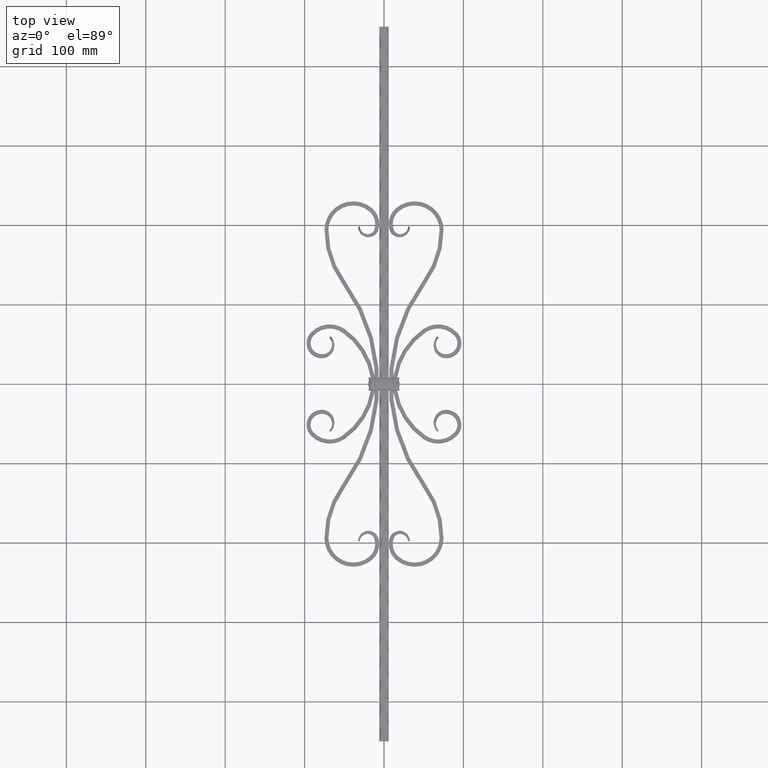
[diagram: clean part render]
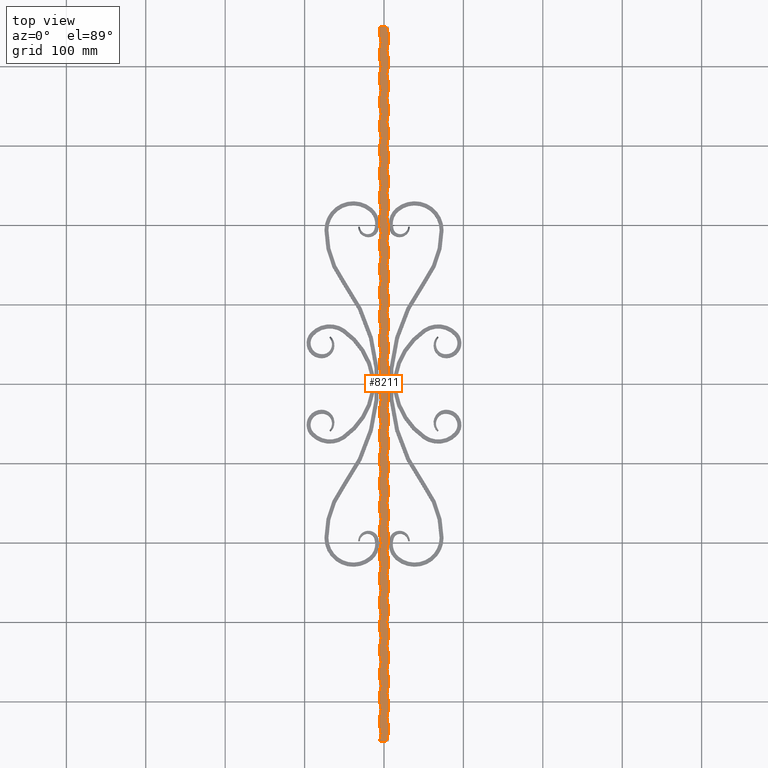
[diagram: same view with one face highlighted and labeled with its STEP entity id]
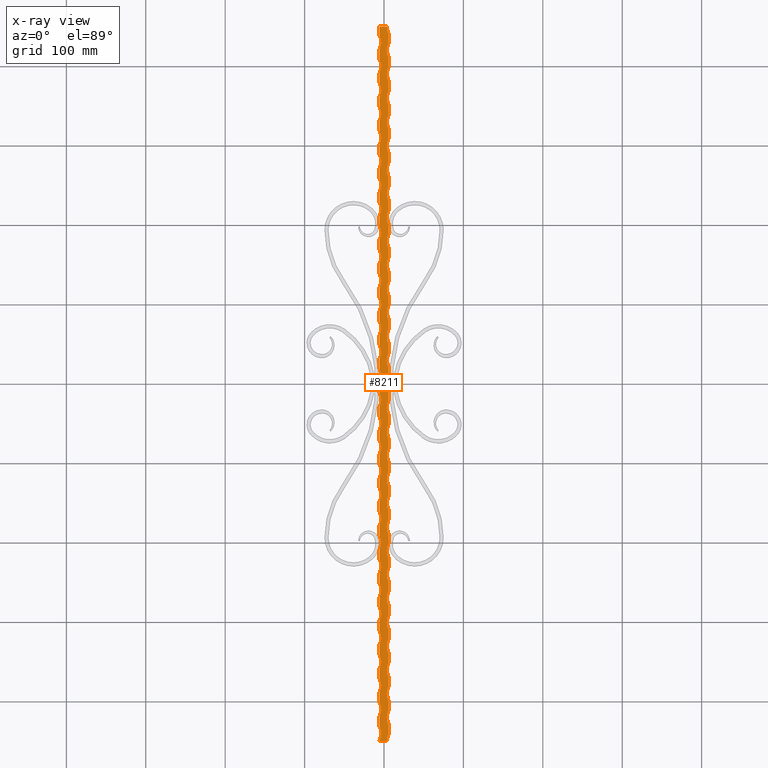
[diagram: x-ray of the same camera — body ghosted, the highlighted face saturated]
A machine part, top view. The second image highlights one B-rep face of the part: STEP entity #8211.
The next image is the same camera in x-ray: the body ghosted, the highlighted face saturated — about 0% of this face is hidden behind the body in this view.
In plain terms, the highlighted planar face has unit normal (0, 0, -1).
Its self-contained STEP definition (entity closure, byte-faithful):
#15 = CARTESIAN_POINT ( 'NONE',  ( -5.999999999999999112, 440.0000000000000000, 6.000000000000000000 ) ) ;
#39 = CARTESIAN_POINT ( 'NONE',  ( -5.999999999999998224, -269.9999999999999432, 6.000000000000000000 ) ) ;
#63 = EDGE_CURVE ( 'NONE', #18527, #9521, #18817, .T. ) ;
#242 = VERTEX_POINT ( 'NONE', #24131 ) ;
#246 = VECTOR ( 'NONE', #23896, 1000.000000000000000 ) ;
#397 = EDGE_CURVE ( 'NONE', #14699, #17683, #2525, .T. ) ;
#402 = CARTESIAN_POINT ( 'NONE',  ( 6.000000000000000888, 450.0000000000000000, 6.000000000000000000 ) ) ;
#403 = LINE ( 'NONE', #23784, #14100 ) ;
#427 = LINE ( 'NONE', #1985, #17624 ) ;
#442 = AXIS2_PLACEMENT_3D ( 'NONE', #18935, #5920, #13505 ) ;
#508 = DIRECTION ( 'NONE',  ( 0.000000000000000000, 0.000000000000000000, -1.000000000000000000 ) ) ;
#523 = CARTESIAN_POINT ( 'NONE',  ( -5.999999999999998224, 120.0000000000000000, 6.000000000000000000 ) ) ;
#556 = CARTESIAN_POINT ( 'NONE',  ( -5.999999999999999112, -219.9999999999999147, 6.000000000000000000 ) ) ;
#617 = EDGE_CURVE ( 'NONE', #15952, #13288, #16751, .T. ) ;
#621 = VECTOR ( 'NONE', #19592, 1000.000000000000000 ) ;
#632 = CARTESIAN_POINT ( 'NONE',  ( -24.75000000000003908, -350.0000000000000568, 6.000000000000000000 ) ) ;
#661 = CARTESIAN_POINT ( 'NONE',  ( 6.000000000000000888, 450.0000000000000000, 6.000000000000000000 ) ) ;
#690 = AXIS2_PLACEMENT_3D ( 'NONE', #16688, #22159, #18405 ) ;
#693 = DIRECTION ( 'NONE',  ( -0.000000000000000000, -1.000000000000000000, -0.000000000000000000 ) ) ;
#698 = DIRECTION ( 'NONE',  ( -0.000000000000000000, -1.000000000000000000, -0.000000000000000000 ) ) ;
#763 = CARTESIAN_POINT ( 'NONE',  ( -5.999999999999998224, 180.0000000000000000, 6.000000000000000000 ) ) ;
#775 = DIRECTION ( 'NONE',  ( 0.000000000000000000, 0.000000000000000000, -1.000000000000000000 ) ) ;
#793 = EDGE_CURVE ( 'NONE', #14895, #16804, #20546, .T. ) ;
#928 = EDGE_CURVE ( 'NONE', #19403, #3089, #21422, .T. ) ;
#930 = DIRECTION ( 'NONE',  ( -0.000000000000000000, -1.000000000000000000, -0.000000000000000000 ) ) ;
#945 = CARTESIAN_POINT ( 'NONE',  ( 6.000000000000000888, -220.0000000000000284, 6.000000000000000000 ) ) ;
#953 = CARTESIAN_POINT ( 'NONE',  ( -24.75000000000003908, -320.0000000000000000, 6.000000000000000000 ) ) ;
#960 = VECTOR ( 'NONE', #3198, 1000.000000000000000 ) ;
#983 = CARTESIAN_POINT ( 'NONE',  ( 6.000000000000001776, 280.0000000000000000, 6.000000000000000000 ) ) ;
#984 = LINE ( 'NONE', #19243, #24026 ) ;
#1033 = EDGE_CURVE ( 'NONE', #14849, #20452, #17905, .T. ) ;
#1049 = DIRECTION ( 'NONE',  ( 0.000000000000000000, 0.000000000000000000, -1.000000000000000000 ) ) ;
#1054 = AXIS2_PLACEMENT_3D ( 'NONE', #6028, #19037, #8165 ) ;
#1080 = ORIENTED_EDGE ( 'NONE', *, *, #21639, .T. ) ;
#1088 = CARTESIAN_POINT ( 'NONE',  ( 6.000000000000001776, -350.0000000000000568, 6.000000000000000000 ) ) ;
#1182 = VERTEX_POINT ( 'NONE', #1198 ) ;
#1198 = CARTESIAN_POINT ( 'NONE',  ( 6.000000000000001776, 400.0000000000000000, 6.000000000000000000 ) ) ;
#1234 = VECTOR ( 'NONE', #9408, 1000.000000000000000 ) ;
#1244 = CARTESIAN_POINT ( 'NONE',  ( -5.999999999999999112, 380.0000000000000000, 6.000000000000000000 ) ) ;
#1272 = VECTOR ( 'NONE', #23388, 1000.000000000000000 ) ;
#1336 = CARTESIAN_POINT ( 'NONE',  ( -5.999999999999999112, 450.0000000000000000, 6.000000000000000000 ) ) ;
#1345 = AXIS2_PLACEMENT_3D ( 'NONE', #14735, #16821, #20486 ) ;
#1382 = AXIS2_PLACEMENT_3D ( 'NONE', #22435, #3819, #20563 ) ;
#1419 = EDGE_CURVE ( 'NONE', #6692, #10653, #8936, .T. ) ;
#1435 = CIRCLE ( 'NONE', #8905, 21.25000000000003553 ) ;
#1440 = VERTEX_POINT ( 'NONE', #15813 ) ;
#1444 = VERTEX_POINT ( 'NONE', #763 ) ;
#1528 = AXIS2_PLACEMENT_3D ( 'NONE', #9120, #23971, #22181 ) ;
#1616 = CARTESIAN_POINT ( 'NONE',  ( -5.999999999999999112, 450.0000000000000000, 6.000000000000000000 ) ) ;
#1617 = ORIENTED_EDGE ( 'NONE', *, *, #22792, .T. ) ;
#1632 = CIRCLE ( 'NONE', #8715, 21.25000000000004263 ) ;
#1636 = VERTEX_POINT ( 'NONE', #14285 ) ;
#1643 = CARTESIAN_POINT ( 'NONE',  ( 24.75000000000003908, -60.00000000000000000, 6.000000000000000000 ) ) ;
#1645 = DIRECTION ( 'NONE',  ( -0.000000000000000000, -1.000000000000000000, -0.000000000000000000 ) ) ;
#1662 = EDGE_CURVE ( 'NONE', #14699, #21419, #17014, .T. ) ;
#1673 = AXIS2_PLACEMENT_3D ( 'NONE', #21945, #14397, #16572 ) ;
#1695 = EDGE_CURVE ( 'NONE', #2835, #16420, #13264, .T. ) ;
#1703 = EDGE_CURVE ( 'NONE', #15522, #23408, #12396, .T. ) ;
#1779 = DIRECTION ( 'NONE',  ( -0.000000000000000000, -1.000000000000000000, -0.000000000000000000 ) ) ;
#1818 = CARTESIAN_POINT ( 'NONE',  ( 6.000000000000000888, -370.0000000000000568, 6.000000000000000000 ) ) ;
#1829 = DIRECTION ( 'NONE',  ( 0.000000000000000000, 0.000000000000000000, -1.000000000000000000 ) ) ;
#1862 = LINE ( 'NONE', #9679, #14387 ) ;
#1893 = VECTOR ( 'NONE', #21671, 1000.000000000000000 ) ;
#1923 = CARTESIAN_POINT ( 'NONE',  ( 6.000000000000001776, -49.99999999999998579, 6.000000000000000000 ) ) ;
#1933 = ORIENTED_EDGE ( 'NONE', *, *, #7994, .T. ) ;
#1934 = DIRECTION ( 'NONE',  ( -0.000000000000000000, -1.000000000000000000, -0.000000000000000000 ) ) ;
#1950 = CARTESIAN_POINT ( 'NONE',  ( -5.999999999999998224, 29.99999999999996803, 6.000000000000000000 ) ) ;
#1953 = ORIENTED_EDGE ( 'NONE', *, *, #9525, .T. ) ;
#1970 = DIRECTION ( 'NONE',  ( 0.000000000000000000, 0.000000000000000000, -1.000000000000000000 ) ) ;
#1982 = VERTEX_POINT ( 'NONE', #17578 ) ;
#1985 = CARTESIAN_POINT ( 'NONE',  ( -5.999999999999999112, 450.0000000000000000, 6.000000000000000000 ) ) ;
#1996 = CARTESIAN_POINT ( 'NONE',  ( -5.999999999999999112, 450.0000000000000000, 6.000000000000000000 ) ) ;
#2000 = VERTEX_POINT ( 'NONE', #8420 ) ;
#2082 = LINE ( 'NONE', #14901, #14889 ) ;
#2139 = CARTESIAN_POINT ( 'NONE',  ( -5.999999999999999112, -450.0000000000000000, 6.000000000000000000 ) ) ;
#2252 = ORIENTED_EDGE ( 'NONE', *, *, #9209, .T. ) ;
#2269 = ORIENTED_EDGE ( 'NONE', *, *, #21346, .F. ) ;
#2275 = AXIS2_PLACEMENT_3D ( 'NONE', #9060, #22032, #20246 ) ;
#2293 = DIRECTION ( 'NONE',  ( -1.000000000000000000, 0.000000000000000000, 0.000000000000000000 ) ) ;
#2320 = CARTESIAN_POINT ( 'NONE',  ( 6.000000000000001776, -410.0000000000000000, 6.000000000000000000 ) ) ;
#2454 = CARTESIAN_POINT ( 'NONE',  ( -24.75000000000003908, -410.0000000000000000, 6.000000000000000000 ) ) ;
#2469 = VERTEX_POINT ( 'NONE', #5269 ) ;
#2484 = DIRECTION ( 'NONE',  ( -0.000000000000000000, -1.000000000000000000, -0.000000000000000000 ) ) ;
#2521 = AXIS2_PLACEMENT_3D ( 'NONE', #17090, #18968, #22383 ) ;
#2525 = CIRCLE ( 'NONE', #7587, 21.25000000000003553 ) ;
#2582 = VERTEX_POINT ( 'NONE', #16869 ) ;
#2591 = CARTESIAN_POINT ( 'NONE',  ( -5.999999999999998224, -120.0000000000000568, 6.000000000000000000 ) ) ;
#2603 = DIRECTION ( 'NONE',  ( -1.000000000000000000, 0.000000000000000000, 0.000000000000000000 ) ) ;
#2615 = VECTOR ( 'NONE', #5297, 1000.000000000000000 ) ;
#2637 = ORIENTED_EDGE ( 'NONE', *, *, #16837, .T. ) ;
#2680 = LINE ( 'NONE', #13151, #1234 ) ;
#2732 = CARTESIAN_POINT ( 'NONE',  ( -5.999999999999999112, 450.0000000000000000, 6.000000000000000000 ) ) ;
#2735 = VERTEX_POINT ( 'NONE', #12247 ) ;
#2742 = VERTEX_POINT ( 'NONE', #12325 ) ;
#2755 = CARTESIAN_POINT ( 'NONE',  ( -5.999999999999999112, 80.00000000000001421, 6.000000000000000000 ) ) ;
#2767 = CIRCLE ( 'NONE', #22665, 21.25000000000004263 ) ;
#2773 = VECTOR ( 'NONE', #4439, 1000.000000000000000 ) ;
#2800 = CARTESIAN_POINT ( 'NONE',  ( -5.999999999999998224, 420.0000000000000000, 6.000000000000000000 ) ) ;
#2829 = FACE_OUTER_BOUND ( 'NONE', #16922, .T. ) ;
#2835 = VERTEX_POINT ( 'NONE', #18651 ) ;
#2900 = ORIENTED_EDGE ( 'NONE', *, *, #11855, .T. ) ;
#2944 = CIRCLE ( 'NONE', #12314, 21.25000000000003553 ) ;
#2961 = CIRCLE ( 'NONE', #23539, 21.25000000000004263 ) ;
#2984 = DIRECTION ( 'NONE',  ( -1.000000000000000000, 0.000000000000000000, 0.000000000000000000 ) ) ;
#2993 = CARTESIAN_POINT ( 'NONE',  ( -24.75000000000003908, -200.0000000000000000, 6.000000000000000000 ) ) ;
#3056 = ORIENTED_EDGE ( 'NONE', *, *, #11200, .T. ) ;
#3073 = VECTOR ( 'NONE', #6611, 1000.000000000000000 ) ;
#3086 = AXIS2_PLACEMENT_3D ( 'NONE', #20039, #22068, #21905 ) ;
#3089 = VERTEX_POINT ( 'NONE', #21057 ) ;
#3091 = AXIS2_PLACEMENT_3D ( 'NONE', #24019, #11267, #9154 ) ;
#3093 = DIRECTION ( 'NONE',  ( -0.000000000000000000, -1.000000000000000000, -0.000000000000000000 ) ) ;
#3123 = AXIS2_PLACEMENT_3D ( 'NONE', #18468, #7119, #8996 ) ;
#3145 = ORIENTED_EDGE ( 'NONE', *, *, #19053, .F. ) ;
#3164 = AXIS2_PLACEMENT_3D ( 'NONE', #6507, #6834, #17958 ) ;
#3198 = DIRECTION ( 'NONE',  ( -0.000000000000000000, -1.000000000000000000, -0.000000000000000000 ) ) ;
#3211 = CARTESIAN_POINT ( 'NONE',  ( -5.999999999999999112, 450.0000000000000000, 6.000000000000000000 ) ) ;
#3241 = AXIS2_PLACEMENT_3D ( 'NONE', #19827, #10736, #23479 ) ;
#3248 = CARTESIAN_POINT ( 'NONE',  ( 6.000000000000000888, 19.99999999999996092, 6.000000000000000000 ) ) ;
#3262 = CARTESIAN_POINT ( 'NONE',  ( 24.75000000000003908, -360.0000000000000568, 6.000000000000000000 ) ) ;
#3293 = CARTESIAN_POINT ( 'NONE',  ( 6.000000000000000888, 450.0000000000000000, 6.000000000000000000 ) ) ;
#3295 = ORIENTED_EDGE ( 'NONE', *, *, #928, .T. ) ;
#3340 = LINE ( 'NONE', #16450, #13827 ) ;
#3406 = CARTESIAN_POINT ( 'NONE',  ( 6.000000000000000888, 199.9999999999999716, 6.000000000000000000 ) ) ;
#3408 = EDGE_CURVE ( 'NONE', #20935, #10915, #20734, .T. ) ;
#3429 = ORIENTED_EDGE ( 'NONE', *, *, #7928, .T. ) ;
#3467 = VERTEX_POINT ( 'NONE', #16142 ) ;
#3479 = VERTEX_POINT ( 'NONE', #18105 ) ;
#3484 = ORIENTED_EDGE ( 'NONE', *, *, #12561, .T. ) ;
#3485 = ORIENTED_EDGE ( 'NONE', *, *, #6194, .F. ) ;
#3499 = ORIENTED_EDGE ( 'NONE', *, *, #21601, .T. ) ;
#3526 = EDGE_CURVE ( 'NONE', #14849, #1182, #11166, .T. ) ;
#3590 = ORIENTED_EDGE ( 'NONE', *, *, #19740, .T. ) ;
#3633 = EDGE_CURVE ( 'NONE', #12424, #18527, #16371, .T. ) ;
#3634 = VERTEX_POINT ( 'NONE', #1818 ) ;
#3670 = VERTEX_POINT ( 'NONE', #12992 ) ;
#3702 = ORIENTED_EDGE ( 'NONE', *, *, #3813, .T. ) ;
#3735 = EDGE_CURVE ( 'NONE', #7435, #11257, #21021, .T. ) ;
#3759 = ORIENTED_EDGE ( 'NONE', *, *, #9907, .T. ) ;
#3764 = VECTOR ( 'NONE', #8041, 1000.000000000000000 ) ;
#3769 = ORIENTED_EDGE ( 'NONE', *, *, #10168, .F. ) ;
#3797 = LINE ( 'NONE', #12878, #2615 ) ;
#3802 = VECTOR ( 'NONE', #22862, 1000.000000000000000 ) ;
#3813 = EDGE_CURVE ( 'NONE', #5151, #4503, #19289, .T. ) ;
#3819 = DIRECTION ( 'NONE',  ( 0.000000000000000000, 0.000000000000000000, -1.000000000000000000 ) ) ;
#3825 = LINE ( 'NONE', #11526, #16046 ) ;
#3862 = DIRECTION ( 'NONE',  ( 0.000000000000000000, 0.000000000000000000, -1.000000000000000000 ) ) ;
#3917 = ORIENTED_EDGE ( 'NONE', *, *, #4719, .T. ) ;
#3927 = CARTESIAN_POINT ( 'NONE',  ( -5.999999999999999112, -340.0000000000000000, 6.000000000000000000 ) ) ;
#3935 = CARTESIAN_POINT ( 'NONE',  ( 24.75000000000003908, 240.0000000000000000, 6.000000000000000000 ) ) ;
#3964 = VECTOR ( 'NONE', #17397, 1000.000000000000000 ) ;
#3966 = VERTEX_POINT ( 'NONE', #12741 ) ;
#4001 = LINE ( 'NONE', #14416, #6020 ) ;
#4010 = VERTEX_POINT ( 'NONE', #1950 ) ;
#4106 = CARTESIAN_POINT ( 'NONE',  ( 6.000000000000000888, 450.0000000000000000, 6.000000000000000000 ) ) ;
#4114 = LINE ( 'NONE', #23779, #16332 ) ;
#4140 = CARTESIAN_POINT ( 'NONE',  ( 24.75000000000003908, 210.0000000000000000, 6.000000000000000000 ) ) ;
#4148 = CIRCLE ( 'NONE', #20834, 21.25000000000004263 ) ;
#4181 = CARTESIAN_POINT ( 'NONE',  ( 24.75000000000003908, 60.00000000000000000, 6.000000000000000000 ) ) ;
#4192 = DIRECTION ( 'NONE',  ( -1.000000000000000000, 0.000000000000000000, 0.000000000000000000 ) ) ;
#4307 = CARTESIAN_POINT ( 'NONE',  ( -5.999999999999999112, 140.0000000000000000, 6.000000000000000000 ) ) ;
#4336 = VERTEX_POINT ( 'NONE', #945 ) ;
#4351 = EDGE_CURVE ( 'NONE', #10179, #3479, #18106, .T. ) ;
#4372 = DIRECTION ( 'NONE',  ( -1.000000000000000000, 0.000000000000000000, 0.000000000000000000 ) ) ;
#4388 = VECTOR ( 'NONE', #19469, 1000.000000000000000 ) ;
#4419 = EDGE_CURVE ( 'NONE', #10012, #1182, #5869, .T. ) ;
#4439 = DIRECTION ( 'NONE',  ( -0.000000000000000000, -1.000000000000000000, -0.000000000000000000 ) ) ;
#4466 = LINE ( 'NONE', #24063, #19028 ) ;
#4474 = DIRECTION ( 'NONE',  ( 0.000000000000000000, 0.000000000000000000, -1.000000000000000000 ) ) ;
#4475 = EDGE_CURVE ( 'NONE', #6407, #17076, #6753, .T. ) ;
#4483 = CIRCLE ( 'NONE', #17129, 21.25000000000004263 ) ;
#4502 = VERTEX_POINT ( 'NONE', #6682 ) ;
#4503 = VERTEX_POINT ( 'NONE', #10666 ) ;
#4532 = CARTESIAN_POINT ( 'NONE',  ( 6.000000000000000888, -70.00000000000000000, 6.000000000000000000 ) ) ;
#4535 = LINE ( 'NONE', #19948, #23145 ) ;
#4591 = CARTESIAN_POINT ( 'NONE',  ( 6.000000000000000888, 450.0000000000000000, 6.000000000000000000 ) ) ;
#4612 = ORIENTED_EDGE ( 'NONE', *, *, #9541, .T. ) ;
#4636 = CARTESIAN_POINT ( 'NONE',  ( -5.999999999999998224, 210.0000000000000000, 6.000000000000000000 ) ) ;
#4644 = VERTEX_POINT ( 'NONE', #19970 ) ;
#4654 = CIRCLE ( 'NONE', #3241, 21.25000000000004263 ) ;
#4672 = LINE ( 'NONE', #22724, #5850 ) ;
#4719 = EDGE_CURVE ( 'NONE', #2000, #14769, #2944, .T. ) ;
#4732 = VECTOR ( 'NONE', #15187, 1000.000000000000000 ) ;
#4743 = CARTESIAN_POINT ( 'NONE',  ( -5.999999999999999112, -9.999999999999953815, 6.000000000000000000 ) ) ;
#4745 = VERTEX_POINT ( 'NONE', #14360 ) ;
#4788 = ORIENTED_EDGE ( 'NONE', *, *, #7335, .T. ) ;
#4789 = CARTESIAN_POINT ( 'NONE',  ( 6.000000000000000888, 450.0000000000000000, 6.000000000000000000 ) ) ;
#4802 = AXIS2_PLACEMENT_3D ( 'NONE', #2993, #19768, #19599 ) ;
#4883 = AXIS2_PLACEMENT_3D ( 'NONE', #5114, #19902, #2984 ) ;
#4895 = VERTEX_POINT ( 'NONE', #18399 ) ;
#4913 = EDGE_CURVE ( 'NONE', #10125, #20224, #6130, .T. ) ;
#4970 = VERTEX_POINT ( 'NONE', #556 ) ;
#4977 = VERTEX_POINT ( 'NONE', #3927 ) ;
#4997 = AXIS2_PLACEMENT_3D ( 'NONE', #22500, #11386, #13010 ) ;
#5008 = CIRCLE ( 'NONE', #8610, 21.25000000000004263 ) ;
#5051 = LINE ( 'NONE', #17464, #13785 ) ;
#5071 = CIRCLE ( 'NONE', #10592, 21.25000000000003553 ) ;
#5096 = AXIS2_PLACEMENT_3D ( 'NONE', #23602, #10453, #16044 ) ;
#5114 = CARTESIAN_POINT ( 'NONE',  ( -24.75000000000003908, 10.00000000000000711, 6.000000000000000000 ) ) ;
#5141 = AXIS2_PLACEMENT_3D ( 'NONE', #8313, #11897, #13907 ) ;
#5151 = VERTEX_POINT ( 'NONE', #8488 ) ;
#5154 = ORIENTED_EDGE ( 'NONE', *, *, #10738, .F. ) ;
#5191 = DIRECTION ( 'NONE',  ( 0.000000000000000000, 0.000000000000000000, -1.000000000000000000 ) ) ;
#5229 = CARTESIAN_POINT ( 'NONE',  ( 6.000000000000001776, -80.00000000000001421, 6.000000000000000000 ) ) ;
#5262 = DIRECTION ( 'NONE',  ( -0.000000000000000000, -1.000000000000000000, -0.000000000000000000 ) ) ;
#5269 = CARTESIAN_POINT ( 'NONE',  ( 6.000000000000000888, -340.0000000000000000, 6.000000000000000000 ) ) ;
#5278 = EDGE_CURVE ( 'NONE', #7613, #23321, #7629, .T. ) ;
#5297 = DIRECTION ( 'NONE',  ( -0.000000000000000000, -1.000000000000000000, -0.000000000000000000 ) ) ;
#5382 = CIRCLE ( 'NONE', #8370, 21.25000000000003553 ) ;
#5386 = ORIENTED_EDGE ( 'NONE', *, *, #1703, .T. ) ;
#5393 = ORIENTED_EDGE ( 'NONE', *, *, #3633, .T. ) ;
#5430 = AXIS2_PLACEMENT_3D ( 'NONE', #14208, #15826, #21678 ) ;
#5461 = ORIENTED_EDGE ( 'NONE', *, *, #15837, .T. ) ;
#5518 = LINE ( 'NONE', #15867, #9299 ) ;
#5568 = EDGE_CURVE ( 'NONE', #8478, #10332, #11380, .T. ) ;
#5571 = EDGE_CURVE ( 'NONE', #11915, #19311, #9922, .T. ) ;
#5620 = CARTESIAN_POINT ( 'NONE',  ( 6.000000000000000888, 450.0000000000000000, 6.000000000000000000 ) ) ;
#5625 = VECTOR ( 'NONE', #20685, 1000.000000000000000 ) ;
#5627 = VECTOR ( 'NONE', #21559, 1000.000000000000000 ) ;
#5685 = CARTESIAN_POINT ( 'NONE',  ( 6.000000000000000888, 450.0000000000000000, 6.000000000000000000 ) ) ;
#5749 = CARTESIAN_POINT ( 'NONE',  ( -5.999999999999999112, -450.0000000000000000, 6.000000000000000000 ) ) ;
#5781 = EDGE_CURVE ( 'NONE', #16327, #7722, #20083, .T. ) ;
#5795 = CARTESIAN_POINT ( 'NONE',  ( -5.999999999999999112, -310.0000000000000000, 6.000000000000000000 ) ) ;
#5796 = LINE ( 'NONE', #4591, #3764 ) ;
#5799 = ORIENTED_EDGE ( 'NONE', *, *, #16527, .T. ) ;
#5843 = EDGE_CURVE ( 'NONE', #1636, #23983, #18942, .T. ) ;
#5850 = VECTOR ( 'NONE', #11287, 1000.000000000000000 ) ;
#5869 = LINE ( 'NONE', #11979, #20138 ) ;
#5872 = CIRCLE ( 'NONE', #1673, 21.25000000000003553 ) ;
#5875 = EDGE_CURVE ( 'NONE', #9502, #11984, #15751, .T. ) ;
#5920 = DIRECTION ( 'NONE',  ( 0.000000000000000000, 0.000000000000000000, -1.000000000000000000 ) ) ;
#5936 = ORIENTED_EDGE ( 'NONE', *, *, #20505, .T. ) ;
#6020 = VECTOR ( 'NONE', #19783, 1000.000000000000000 ) ;
#6028 = CARTESIAN_POINT ( 'NONE',  ( -24.75000000000003908, 130.0000000000000000, 6.000000000000000000 ) ) ;
#6029 = ORIENTED_EDGE ( 'NONE', *, *, #21867, .T. ) ;
#6073 = CARTESIAN_POINT ( 'NONE',  ( 6.000000000000001776, -19.99999999999996092, 6.000000000000000000 ) ) ;
#6098 = ORIENTED_EDGE ( 'NONE', *, *, #17412, .T. ) ;
#6130 = CIRCLE ( 'NONE', #3091, 21.25000000000003553 ) ;
#6171 = CARTESIAN_POINT ( 'NONE',  ( -5.999999999999999112, 450.0000000000000000, 6.000000000000000000 ) ) ;
#6194 = EDGE_CURVE ( 'NONE', #2000, #23030, #4114, .T. ) ;
#6205 = CARTESIAN_POINT ( 'NONE',  ( -5.999999999999998224, -330.0000000000000000, 6.000000000000000000 ) ) ;
#6206 = EDGE_CURVE ( 'NONE', #7435, #20068, #22148, .T. ) ;
#6209 = AXIS2_PLACEMENT_3D ( 'NONE', #9966, #17830, #6793 ) ;
#6253 = DIRECTION ( 'NONE',  ( -1.000000000000000000, 0.000000000000000000, 0.000000000000000000 ) ) ;
#6279 = ORIENTED_EDGE ( 'NONE', *, *, #10056, .T. ) ;
#6304 = DIRECTION ( 'NONE',  ( -0.000000000000000000, -1.000000000000000000, -0.000000000000000000 ) ) ;
#6311 = EDGE_CURVE ( 'NONE', #21909, #20175, #16905, .T. ) ;
#6315 = ORIENTED_EDGE ( 'NONE', *, *, #17535, .T. ) ;
#6332 = CARTESIAN_POINT ( 'NONE',  ( -5.999999999999998224, 329.9999999999999432, 6.000000000000000000 ) ) ;
#6385 = EDGE_CURVE ( 'NONE', #7505, #10653, #14876, .T. ) ;
#6407 = VERTEX_POINT ( 'NONE', #9708 ) ;
#6464 = CARTESIAN_POINT ( 'NONE',  ( 6.000000000000000888, 450.0000000000000000, 6.000000000000000000 ) ) ;
#6494 = CARTESIAN_POINT ( 'NONE',  ( 6.000000000000001776, -110.0000000000000426, 6.000000000000000000 ) ) ;
#6500 = DIRECTION ( 'NONE',  ( -1.000000000000000000, 0.000000000000000000, 0.000000000000000000 ) ) ;
#6507 = CARTESIAN_POINT ( 'NONE',  ( -24.75000000000003908, -290.0000000000000000, 6.000000000000000000 ) ) ;
#6570 = AXIS2_PLACEMENT_3D ( 'NONE', #11047, #13070, #20447 ) ;
#6611 = DIRECTION ( 'NONE',  ( -0.000000000000000000, -1.000000000000000000, -0.000000000000000000 ) ) ;
#6668 = EDGE_CURVE ( 'NONE', #14972, #10915, #12829, .T. ) ;
#6681 = DIRECTION ( 'NONE',  ( -0.000000000000000000, -1.000000000000000000, -0.000000000000000000 ) ) ;
#6682 = CARTESIAN_POINT ( 'NONE',  ( -5.999999999999998224, -300.0000000000000000, 6.000000000000000000 ) ) ;
#6689 = CARTESIAN_POINT ( 'NONE',  ( -5.999999999999998224, 390.0000000000000000, 6.000000000000000000 ) ) ;
#6692 = VERTEX_POINT ( 'NONE', #3406 ) ;
#6696 = CARTESIAN_POINT ( 'NONE',  ( -5.999999999999999112, 450.0000000000000000, 6.000000000000000000 ) ) ;
#6745 = DIRECTION ( 'NONE',  ( -0.000000000000000000, -1.000000000000000000, -0.000000000000000000 ) ) ;
#6753 = LINE ( 'NONE', #4789, #11130 ) ;
#6779 = PLANE ( 'NONE',  #22227 ) ;
#6793 = DIRECTION ( 'NONE',  ( -1.000000000000000000, 0.000000000000000000, 0.000000000000000000 ) ) ;
#6803 = CARTESIAN_POINT ( 'NONE',  ( -5.999999999999998224, -180.0000000000000000, 6.000000000000000000 ) ) ;
#6809 = CARTESIAN_POINT ( 'NONE',  ( 6.000000000000000888, 450.0000000000000000, 6.000000000000000000 ) ) ;
#6826 = DIRECTION ( 'NONE',  ( -1.000000000000000000, 0.000000000000000000, 0.000000000000000000 ) ) ;
#6834 = DIRECTION ( 'NONE',  ( 0.000000000000000000, 0.000000000000000000, -1.000000000000000000 ) ) ;
#6854 = EDGE_CURVE ( 'NONE', #13791, #22525, #23267, .T. ) ;
#6858 = CARTESIAN_POINT ( 'NONE',  ( 6.000000000000000888, 450.0000000000000000, 6.000000000000000000 ) ) ;
#6898 = CARTESIAN_POINT ( 'NONE',  ( -5.999999999999998224, -90.00000000000002842, 6.000000000000000000 ) ) ;
#6938 = CIRCLE ( 'NONE', #1345, 21.25000000000004263 ) ;
#6963 = CARTESIAN_POINT ( 'NONE',  ( 6.000000000000000888, 410.0000000000000000, 6.000000000000000000 ) ) ;
#6971 = VERTEX_POINT ( 'NONE', #12557 ) ;
#7012 = EDGE_CURVE ( 'NONE', #2469, #17904, #3797, .T. ) ;
#7059 = VECTOR ( 'NONE', #14990, 1000.000000000000000 ) ;
#7071 = DIRECTION ( 'NONE',  ( 0.000000000000000000, 0.000000000000000000, -1.000000000000000000 ) ) ;
#7094 = VECTOR ( 'NONE', #6304, 1000.000000000000000 ) ;
#7116 = EDGE_CURVE ( 'NONE', #23610, #14558, #22204, .T. ) ;
#7119 = DIRECTION ( 'NONE',  ( 0.000000000000000000, 0.000000000000000000, -1.000000000000000000 ) ) ;
#7127 = CIRCLE ( 'NONE', #12105, 21.25000000000004263 ) ;
#7242 = CARTESIAN_POINT ( 'NONE',  ( 6.000000000000001776, -320.0000000000000000, 6.000000000000000000 ) ) ;
#7276 = ORIENTED_EDGE ( 'NONE', *, *, #17019, .T. ) ;
#7335 = EDGE_CURVE ( 'NONE', #10332, #2735, #9023, .T. ) ;
#7361 = CARTESIAN_POINT ( 'NONE',  ( -5.999999999999999112, -430.0000000000000000, 6.000000000000000000 ) ) ;
#7403 = VERTEX_POINT ( 'NONE', #8626 ) ;
#7407 = CARTESIAN_POINT ( 'NONE',  ( 24.75000000000003908, -450.0000000000000000, 6.000000000000000000 ) ) ;
#7414 = EDGE_CURVE ( 'NONE', #10012, #18024, #9288, .T. ) ;
#7431 = ORIENTED_EDGE ( 'NONE', *, *, #5571, .T. ) ;
#7435 = VERTEX_POINT ( 'NONE', #10487 ) ;
#7465 = CARTESIAN_POINT ( 'NONE',  ( -5.999999999999999112, 450.0000000000000000, 6.000000000000000000 ) ) ;
#7505 = VERTEX_POINT ( 'NONE', #9185 ) ;
#7523 = VERTEX_POINT ( 'NONE', #39 ) ;
#7542 = EDGE_CURVE ( 'NONE', #14592, #24056, #8709, .T. ) ;
#7544 = DIRECTION ( 'NONE',  ( -1.000000000000000000, 0.000000000000000000, 0.000000000000000000 ) ) ;
#7567 = VERTEX_POINT ( 'NONE', #12774 ) ;
#7587 = AXIS2_PLACEMENT_3D ( 'NONE', #1643, #12903, #23860 ) ;
#7613 = VERTEX_POINT ( 'NONE', #11293 ) ;
#7629 = LINE ( 'NONE', #16342, #20112 ) ;
#7677 = DIRECTION ( 'NONE',  ( -0.000000000000000000, -1.000000000000000000, -0.000000000000000000 ) ) ;
#7721 = CARTESIAN_POINT ( 'NONE',  ( 6.000000000000001776, -169.9999999999999716, 6.000000000000000000 ) ) ;
#7722 = VERTEX_POINT ( 'NONE', #13779 ) ;
#7737 = ORIENTED_EDGE ( 'NONE', *, *, #4475, .F. ) ;
#7752 = CIRCLE ( 'NONE', #4883, 21.25000000000004263 ) ;
#7775 = CIRCLE ( 'NONE', #5430, 21.25000000000003553 ) ;
#7796 = AXIS2_PLACEMENT_3D ( 'NONE', #16955, #9586, #22494 ) ;
#7800 = VECTOR ( 'NONE', #698, 1000.000000000000000 ) ;
#7928 = EDGE_CURVE ( 'NONE', #11191, #16804, #12779, .T. ) ;
#7960 = EDGE_CURVE ( 'NONE', #16327, #11257, #17105, .T. ) ;
#7980 = VERTEX_POINT ( 'NONE', #15163 ) ;
#7994 = EDGE_CURVE ( 'NONE', #12775, #12152, #11604, .T. ) ;
#8034 = CARTESIAN_POINT ( 'NONE',  ( 24.75000000000003908, -420.0000000000000000, 6.000000000000000000 ) ) ;
#8041 = DIRECTION ( 'NONE',  ( -0.000000000000000000, -1.000000000000000000, -0.000000000000000000 ) ) ;
#8056 = CARTESIAN_POINT ( 'NONE',  ( 6.000000000000000000, 439.9999999999999432, 6.000000000000000000 ) ) ;
#8057 = CIRCLE ( 'NONE', #11674, 21.25000000000004263 ) ;
#8104 = CARTESIAN_POINT ( 'NONE',  ( -24.75000000000003908, 39.99999999999997868, 6.000000000000000000 ) ) ;
#8110 = VERTEX_POINT ( 'NONE', #6205 ) ;
#8124 = ORIENTED_EDGE ( 'NONE', *, *, #3735, .F. ) ;
#8134 = ORIENTED_EDGE ( 'NONE', *, *, #7116, .F. ) ;
#8153 = CIRCLE ( 'NONE', #12529, 21.25000000000004263 ) ;
#8165 = DIRECTION ( 'NONE',  ( -1.000000000000000000, 0.000000000000000000, 0.000000000000000000 ) ) ;
#8210 = VECTOR ( 'NONE', #8859, 1000.000000000000000 ) ;
#8211 = ADVANCED_FACE ( 'NONE', ( #2829 ), #6779, .F. ) ;
#8259 = EDGE_CURVE ( 'NONE', #10142, #7613, #6938, .T. ) ;
#8292 = CARTESIAN_POINT ( 'NONE',  ( -24.75000000000003908, -169.9999999999999716, 6.000000000000000000 ) ) ;
#8313 = CARTESIAN_POINT ( 'NONE',  ( 24.75000000000003908, -389.9999999999999432, 6.000000000000000000 ) ) ;
#8332 = DIRECTION ( 'NONE',  ( 0.000000000000000000, 0.000000000000000000, -1.000000000000000000 ) ) ;
#8338 = DIRECTION ( 'NONE',  ( 0.000000000000000000, 0.000000000000000000, -1.000000000000000000 ) ) ;
#8370 = AXIS2_PLACEMENT_3D ( 'NONE', #20129, #7071, #12510 ) ;
#8371 = AXIS2_PLACEMENT_3D ( 'NONE', #16859, #3862, #22482 ) ;
#8419 = CARTESIAN_POINT ( 'NONE',  ( -24.75000000000003908, 220.0000000000000000, 6.000000000000000000 ) ) ;
#8420 = CARTESIAN_POINT ( 'NONE',  ( 6.000000000000000888, -130.0000000000000568, 6.000000000000000000 ) ) ;
#8464 = CARTESIAN_POINT ( 'NONE',  ( -5.999999999999999112, 350.0000000000000000, 6.000000000000000000 ) ) ;
#8478 = VERTEX_POINT ( 'NONE', #21274 ) ;
#8488 = CARTESIAN_POINT ( 'NONE',  ( 6.000000000000000888, -249.9999999999999432, 6.000000000000000000 ) ) ;
#8502 = EDGE_CURVE ( 'NONE', #4745, #11149, #16796, .T. ) ;
#8564 = DIRECTION ( 'NONE',  ( -0.000000000000000000, -1.000000000000000000, -0.000000000000000000 ) ) ;
#8610 = AXIS2_PLACEMENT_3D ( 'NONE', #11015, #21967, #23678 ) ;
#8619 = DIRECTION ( 'NONE',  ( -0.000000000000000000, -1.000000000000000000, -0.000000000000000000 ) ) ;
#8626 = CARTESIAN_POINT ( 'NONE',  ( -5.999999999999999112, -39.99999999999997868, 6.000000000000000000 ) ) ;
#8665 = ORIENTED_EDGE ( 'NONE', *, *, #15643, .F. ) ;
#8676 = DIRECTION ( 'NONE',  ( 0.000000000000000000, 0.000000000000000000, -1.000000000000000000 ) ) ;
#8701 = CARTESIAN_POINT ( 'NONE',  ( -24.75000000000003908, -139.9999999999999716, 6.000000000000000000 ) ) ;
#8709 = LINE ( 'NONE', #14939, #246 ) ;
#8715 = AXIS2_PLACEMENT_3D ( 'NONE', #13503, #15602, #6253 ) ;
#8746 = EDGE_CURVE ( 'NONE', #4336, #3966, #14484, .T. ) ;
#8776 = LINE ( 'NONE', #10114, #3802 ) ;
#8778 = DIRECTION ( 'NONE',  ( -1.000000000000000000, 0.000000000000000000, 0.000000000000000000 ) ) ;
#8781 = DIRECTION ( 'NONE',  ( 0.000000000000000000, 0.000000000000000000, -1.000000000000000000 ) ) ;
#8800 = VECTOR ( 'NONE', #930, 1000.000000000000000 ) ;
#8859 = DIRECTION ( 'NONE',  ( -0.000000000000000000, -1.000000000000000000, -0.000000000000000000 ) ) ;
#8869 = AXIS2_PLACEMENT_3D ( 'NONE', #18015, #8781, #19880 ) ;
#8876 = LINE ( 'NONE', #12358, #1272 ) ;
#8905 = AXIS2_PLACEMENT_3D ( 'NONE', #15238, #1970, #7544 ) ;
#8936 = LINE ( 'NONE', #17690, #2773 ) ;
#8946 = VERTEX_POINT ( 'NONE', #5795 ) ;
#8984 = ORIENTED_EDGE ( 'NONE', *, *, #11598, .T. ) ;
#8996 = DIRECTION ( 'NONE',  ( -1.000000000000000000, 0.000000000000000000, 0.000000000000000000 ) ) ;
#8998 = VERTEX_POINT ( 'NONE', #18799 ) ;
#9017 = CARTESIAN_POINT ( 'NONE',  ( 6.000000000000000888, 450.0000000000000000, 6.000000000000000000 ) ) ;
#9023 = CIRCLE ( 'NONE', #13345, 21.25000000000004263 ) ;
#9042 = EDGE_CURVE ( 'NONE', #4977, #11028, #16196, .T. ) ;
#9050 = VECTOR ( 'NONE', #8564, 1000.000000000000000 ) ;
#9060 = CARTESIAN_POINT ( 'NONE',  ( 24.75000000000003908, 0.000000000000000000, 6.000000000000000000 ) ) ;
#9062 = CARTESIAN_POINT ( 'NONE',  ( -5.999999999999999112, 450.0000000000000000, 6.000000000000000000 ) ) ;
#9120 = CARTESIAN_POINT ( 'NONE',  ( -24.75000000000003908, -440.0000000000000000, 6.000000000000000000 ) ) ;
#9125 = ORIENTED_EDGE ( 'NONE', *, *, #14034, .T. ) ;
#9154 = DIRECTION ( 'NONE',  ( -1.000000000000000000, 0.000000000000000000, 0.000000000000000000 ) ) ;
#9160 = DIRECTION ( 'NONE',  ( -1.000000000000000000, 0.000000000000000000, 0.000000000000000000 ) ) ;
#9181 = CARTESIAN_POINT ( 'NONE',  ( -24.75000000000003908, -80.00000000000001421, 6.000000000000000000 ) ) ;
#9185 = CARTESIAN_POINT ( 'NONE',  ( 6.000000000000000888, 169.9999999999999716, 6.000000000000000000 ) ) ;
#9186 = ORIENTED_EDGE ( 'NONE', *, *, #21138, .F. ) ;
#9189 = VECTOR ( 'NONE', #12596, 1000.000000000000000 ) ;
#9190 = AXIS2_PLACEMENT_3D ( 'NONE', #14771, #18580, #18503 ) ;
#9194 = ORIENTED_EDGE ( 'NONE', *, *, #13448, .T. ) ;
#9201 = CARTESIAN_POINT ( 'NONE',  ( 6.000000000000001776, -379.9999999999999432, 6.000000000000000000 ) ) ;
#9209 = EDGE_CURVE ( 'NONE', #8110, #4977, #20856, .T. ) ;
#9216 = AXIS2_PLACEMENT_3D ( 'NONE', #22823, #13736, #4372 ) ;
#9246 = CIRCLE ( 'NONE', #2275, 21.25000000000003553 ) ;
#9252 = VERTEX_POINT ( 'NONE', #18295 ) ;
#9275 = EDGE_CURVE ( 'NONE', #14895, #20175, #9246, .T. ) ;
#9288 = CIRCLE ( 'NONE', #11960, 21.25000000000003553 ) ;
#9299 = VECTOR ( 'NONE', #3093, 1000.000000000000000 ) ;
#9312 = ORIENTED_EDGE ( 'NONE', *, *, #19896, .F. ) ;
#9320 = CARTESIAN_POINT ( 'NONE',  ( 6.000000000000001776, 339.9999999999999432, 6.000000000000000000 ) ) ;
#9354 = EDGE_CURVE ( 'NONE', #14531, #14558, #22289, .T. ) ;
#9366 = CARTESIAN_POINT ( 'NONE',  ( 6.000000000000001776, 100.0000000000000284, 6.000000000000000000 ) ) ;
#9408 = DIRECTION ( 'NONE',  ( -0.000000000000000000, -1.000000000000000000, -0.000000000000000000 ) ) ;
#9424 = EDGE_CURVE ( 'NONE', #7403, #10754, #1632, .T. ) ;
#9502 = VERTEX_POINT ( 'NONE', #8056 ) ;
#9521 = VERTEX_POINT ( 'NONE', #8464 ) ;
#9525 = EDGE_CURVE ( 'NONE', #20272, #16420, #7775, .T. ) ;
#9530 = EDGE_CURVE ( 'NONE', #11903, #10164, #8057, .T. ) ;
#9541 = EDGE_CURVE ( 'NONE', #7523, #21921, #18812, .T. ) ;
#9551 = ORIENTED_EDGE ( 'NONE', *, *, #23353, .F. ) ;
#9586 = DIRECTION ( 'NONE',  ( 0.000000000000000000, 0.000000000000000000, -1.000000000000000000 ) ) ;
#9611 = ORIENTED_EDGE ( 'NONE', *, *, #9042, .T. ) ;
#9641 = DIRECTION ( 'NONE',  ( 0.000000000000000000, 0.000000000000000000, -1.000000000000000000 ) ) ;
#9643 = LINE ( 'NONE', #7465, #16899 ) ;
#9679 = CARTESIAN_POINT ( 'NONE',  ( -5.999999999999999112, 450.0000000000000000, 6.000000000000000000 ) ) ;
#9708 = CARTESIAN_POINT ( 'NONE',  ( 6.000000000000000888, 350.0000000000000000, 6.000000000000000000 ) ) ;
#9717 = DIRECTION ( 'NONE',  ( 0.000000000000000000, 0.000000000000000000, -1.000000000000000000 ) ) ;
#9751 = ORIENTED_EDGE ( 'NONE', *, *, #13997, .T. ) ;
#9762 = EDGE_CURVE ( 'NONE', #15704, #17132, #427, .T. ) ;
#9767 = VECTOR ( 'NONE', #21017, 1000.000000000000000 ) ;
#9772 = ORIENTED_EDGE ( 'NONE', *, *, #10949, .T. ) ;
#9807 = DIRECTION ( 'NONE',  ( -1.000000000000000000, 0.000000000000000000, 0.000000000000000000 ) ) ;
#9855 = ORIENTED_EDGE ( 'NONE', *, *, #6311, .F. ) ;
#9859 = CARTESIAN_POINT ( 'NONE',  ( 24.75000000000003908, 120.0000000000000000, 6.000000000000000000 ) ) ;
#9870 = VECTOR ( 'NONE', #18144, 1000.000000000000000 ) ;
#9896 = ORIENTED_EDGE ( 'NONE', *, *, #18913, .T. ) ;
#9907 = EDGE_CURVE ( 'NONE', #13791, #16465, #10663, .T. ) ;
#9922 = LINE ( 'NONE', #23069, #8800 ) ;
#9966 = CARTESIAN_POINT ( 'NONE',  ( 24.75000000000003908, -239.9999999999999432, 6.000000000000000000 ) ) ;
#9973 = CIRCLE ( 'NONE', #3123, 21.25000000000004263 ) ;
#9981 = CARTESIAN_POINT ( 'NONE',  ( -5.999999999999999112, -159.9999999999999716, 6.000000000000000000 ) ) ;
#10012 = VERTEX_POINT ( 'NONE', #6963 ) ;
#10049 = CARTESIAN_POINT ( 'NONE',  ( -24.75000000000003908, -229.9999999999999147, 6.000000000000000000 ) ) ;
#10056 = EDGE_CURVE ( 'NONE', #15329, #17076, #19068, .T. ) ;
#10088 = DIRECTION ( 'NONE',  ( 0.000000000000000000, 0.000000000000000000, -1.000000000000000000 ) ) ;
#10114 = CARTESIAN_POINT ( 'NONE',  ( -5.999999999999999112, 450.0000000000000000, 6.000000000000000000 ) ) ;
#10125 = VERTEX_POINT ( 'NONE', #17992 ) ;
#10142 = VERTEX_POINT ( 'NONE', #10944 ) ;
#10164 = VERTEX_POINT ( 'NONE', #18389 ) ;
#10168 = EDGE_CURVE ( 'NONE', #3634, #18901, #4535, .T. ) ;
#10179 = VERTEX_POINT ( 'NONE', #23855 ) ;
#10184 = VECTOR ( 'NONE', #15493, 1000.000000000000000 ) ;
#10279 = CARTESIAN_POINT ( 'NONE',  ( 6.000000000000000888, 450.0000000000000000, 6.000000000000000000 ) ) ;
#10294 = DIRECTION ( 'NONE',  ( -1.000000000000000000, 0.000000000000000000, 0.000000000000000000 ) ) ;
#10298 = EDGE_CURVE ( 'NONE', #8946, #8110, #22851, .T. ) ;
#10332 = VERTEX_POINT ( 'NONE', #2755 ) ;
#10336 = CARTESIAN_POINT ( 'NONE',  ( -5.999999999999999112, 450.0000000000000000, 6.000000000000000000 ) ) ;
#10353 = CARTESIAN_POINT ( 'NONE',  ( -5.999999999999998224, -389.9999999999999432, 6.000000000000000000 ) ) ;
#10381 = VECTOR ( 'NONE', #15335, 1000.000000000000000 ) ;
#10438 = CARTESIAN_POINT ( 'NONE',  ( -5.999999999999999112, 450.0000000000000000, 6.000000000000000000 ) ) ;
#10442 = EDGE_CURVE ( 'NONE', #17132, #6971, #13256, .T. ) ;
#10446 = CARTESIAN_POINT ( 'NONE',  ( -5.999999999999999112, 450.0000000000000000, 6.000000000000000000 ) ) ;
#10453 = DIRECTION ( 'NONE',  ( 0.000000000000000000, 0.000000000000000000, -1.000000000000000000 ) ) ;
#10483 = ORIENTED_EDGE ( 'NONE', *, *, #4419, .F. ) ;
#10487 = CARTESIAN_POINT ( 'NONE',  ( 6.000000000000000888, 260.0000000000000000, 6.000000000000000000 ) ) ;
#10502 = VERTEX_POINT ( 'NONE', #6689 ) ;
#10540 = ORIENTED_EDGE ( 'NONE', *, *, #22430, .T. ) ;
#10582 = CARTESIAN_POINT ( 'NONE',  ( 6.000000000000001776, 370.0000000000000000, 6.000000000000000000 ) ) ;
#10592 = AXIS2_PLACEMENT_3D ( 'NONE', #4140, #11400, #20879 ) ;
#10593 = DIRECTION ( 'NONE',  ( -1.000000000000000000, 0.000000000000000000, -0.000000000000000000 ) ) ;
#10603 = ORIENTED_EDGE ( 'NONE', *, *, #6206, .T. ) ;
#10653 = VERTEX_POINT ( 'NONE', #11000 ) ;
#10655 = ORIENTED_EDGE ( 'NONE', *, *, #22757, .T. ) ;
#10663 = CIRCLE ( 'NONE', #17561, 21.25000000000003553 ) ;
#10666 = CARTESIAN_POINT ( 'NONE',  ( 6.000000000000001776, -229.9999999999999147, 6.000000000000000000 ) ) ;
#10694 = VECTOR ( 'NONE', #14819, 1000.000000000000000 ) ;
#10736 = DIRECTION ( 'NONE',  ( 0.000000000000000000, 0.000000000000000000, -1.000000000000000000 ) ) ;
#10738 = EDGE_CURVE ( 'NONE', #14531, #16465, #14693, .T. ) ;
#10754 = VERTEX_POINT ( 'NONE', #17359 ) ;
#10794 = DIRECTION ( 'NONE',  ( 0.000000000000000000, 0.000000000000000000, -1.000000000000000000 ) ) ;
#10803 = VECTOR ( 'NONE', #10838, 1000.000000000000000 ) ;
#10838 = DIRECTION ( 'NONE',  ( -0.000000000000000000, -1.000000000000000000, -0.000000000000000000 ) ) ;
#10864 = CARTESIAN_POINT ( 'NONE',  ( -5.999999999999999112, 260.0000000000000000, 6.000000000000000000 ) ) ;
#10915 = VERTEX_POINT ( 'NONE', #2320 ) ;
#10924 = VECTOR ( 'NONE', #23776, 1000.000000000000000 ) ;
#10944 = CARTESIAN_POINT ( 'NONE',  ( -5.999999999999999112, 169.9999999999999716, 6.000000000000000000 ) ) ;
#10949 = EDGE_CURVE ( 'NONE', #23408, #11903, #984, .T. ) ;
#10995 = VECTOR ( 'NONE', #1779, 1000.000000000000000 ) ;
#11000 = CARTESIAN_POINT ( 'NONE',  ( 6.000000000000001776, 190.0000000000000000, 6.000000000000000000 ) ) ;
#11015 = CARTESIAN_POINT ( 'NONE',  ( -24.75000000000003908, 250.0000000000000000, 6.000000000000000000 ) ) ;
#11028 = VERTEX_POINT ( 'NONE', #17602 ) ;
#11034 = CARTESIAN_POINT ( 'NONE',  ( -24.75000000000003908, 400.0000000000000000, 6.000000000000000000 ) ) ;
#11047 = CARTESIAN_POINT ( 'NONE',  ( -24.75000000000003908, -379.9999999999999432, 6.000000000000000000 ) ) ;
#11060 = CIRCLE ( 'NONE', #5141, 21.25000000000003553 ) ;
#11079 = AXIS2_PLACEMENT_3D ( 'NONE', #9859, #4474, #2603 ) ;
#11119 = CARTESIAN_POINT ( 'NONE',  ( 24.75000000000003908, 270.0000000000000000, 6.000000000000000000 ) ) ;
#11130 = VECTOR ( 'NONE', #14318, 1000.000000000000000 ) ;
#11144 = EDGE_CURVE ( 'NONE', #12152, #13985, #15839, .T. ) ;
#11149 = VERTEX_POINT ( 'NONE', #10864 ) ;
#11163 = CIRCLE ( 'NONE', #6570, 21.25000000000004263 ) ;
#11166 = CIRCLE ( 'NONE', #8869, 21.25000000000003553 ) ;
#11179 = CARTESIAN_POINT ( 'NONE',  ( -24.75000000000003908, 339.9999999999999432, 6.000000000000000000 ) ) ;
#11187 = DIRECTION ( 'NONE',  ( -0.000000000000000000, -1.000000000000000000, -0.000000000000000000 ) ) ;
#11191 = VERTEX_POINT ( 'NONE', #18482 ) ;
#11200 = EDGE_CURVE ( 'NONE', #2735, #7567, #3340, .T. ) ;
#11257 = VERTEX_POINT ( 'NONE', #14988 ) ;
#11267 = DIRECTION ( 'NONE',  ( 0.000000000000000000, 0.000000000000000000, -1.000000000000000000 ) ) ;
#11287 = DIRECTION ( 'NONE',  ( -0.000000000000000000, -1.000000000000000000, -0.000000000000000000 ) ) ;
#11293 = CARTESIAN_POINT ( 'NONE',  ( -5.999999999999998224, 149.9999999999999716, 6.000000000000000000 ) ) ;
#11325 = VERTEX_POINT ( 'NONE', #13683 ) ;
#11333 = CIRCLE ( 'NONE', #17136, 21.25000000000003553 ) ;
#11349 = CARTESIAN_POINT ( 'NONE',  ( 6.000000000000000888, 450.0000000000000000, 6.000000000000000000 ) ) ;
#11380 = LINE ( 'NONE', #6171, #16302 ) ;
#11386 = DIRECTION ( 'NONE',  ( 0.000000000000000000, 0.000000000000000000, -1.000000000000000000 ) ) ;
#11395 = ORIENTED_EDGE ( 'NONE', *, *, #3526, .T. ) ;
#11396 = AXIS2_PLACEMENT_3D ( 'NONE', #9181, #1829, #23967 ) ;
#11397 = CARTESIAN_POINT ( 'NONE',  ( 6.000000000000000888, 80.00000000000001421, 6.000000000000000000 ) ) ;
#11400 = DIRECTION ( 'NONE',  ( 0.000000000000000000, 0.000000000000000000, -1.000000000000000000 ) ) ;
#11423 = VERTEX_POINT ( 'NONE', #4636 ) ;
#11479 = LINE ( 'NONE', #10438, #12659 ) ;
#11526 = CARTESIAN_POINT ( 'NONE',  ( 6.000000000000000888, 450.0000000000000000, 6.000000000000000000 ) ) ;
#11598 = EDGE_CURVE ( 'NONE', #21909, #22525, #23124, .T. ) ;
#11604 = CIRCLE ( 'NONE', #12893, 21.25000000000004263 ) ;
#11674 = AXIS2_PLACEMENT_3D ( 'NONE', #8701, #15992, #23144 ) ;
#11714 = EDGE_CURVE ( 'NONE', #6407, #20452, #14971, .T. ) ;
#11747 = ORIENTED_EDGE ( 'NONE', *, *, #6854, .F. ) ;
#11755 = DIRECTION ( 'NONE',  ( -1.000000000000000000, 0.000000000000000000, 0.000000000000000000 ) ) ;
#11778 = EDGE_CURVE ( 'NONE', #6692, #7722, #5071, .T. ) ;
#11855 = EDGE_CURVE ( 'NONE', #7980, #23391, #1862, .T. ) ;
#11879 = EDGE_CURVE ( 'NONE', #15129, #1444, #4483, .T. ) ;
#11881 = DIRECTION ( 'NONE',  ( -1.000000000000000000, 0.000000000000000000, 0.000000000000000000 ) ) ;
#11897 = DIRECTION ( 'NONE',  ( 0.000000000000000000, 0.000000000000000000, -1.000000000000000000 ) ) ;
#11903 = VERTEX_POINT ( 'NONE', #11962 ) ;
#11915 = VERTEX_POINT ( 'NONE', #6332 ) ;
#11960 = AXIS2_PLACEMENT_3D ( 'NONE', #16319, #5191, #6826 ) ;
#11962 = CARTESIAN_POINT ( 'NONE',  ( -5.999999999999999112, -129.9999999999999432, 6.000000000000000000 ) ) ;
#11979 = CARTESIAN_POINT ( 'NONE',  ( 6.000000000000000888, 450.0000000000000000, 6.000000000000000000 ) ) ;
#11984 = VERTEX_POINT ( 'NONE', #19577 ) ;
#12006 = CARTESIAN_POINT ( 'NONE',  ( -5.999999999999999112, 200.0000000000000000, 6.000000000000000000 ) ) ;
#12018 = EDGE_CURVE ( 'NONE', #4336, #4503, #8876, .T. ) ;
#12048 = LINE ( 'NONE', #5685, #21924 ) ;
#12061 = CARTESIAN_POINT ( 'NONE',  ( -5.999999999999999112, -399.9999999999999432, 6.000000000000000000 ) ) ;
#12081 = ORIENTED_EDGE ( 'NONE', *, *, #22477, .T. ) ;
#12098 = VERTEX_POINT ( 'NONE', #7242 ) ;
#12105 = AXIS2_PLACEMENT_3D ( 'NONE', #8419, #22873, #11755 ) ;
#12152 = VERTEX_POINT ( 'NONE', #16317 ) ;
#12159 = ORIENTED_EDGE ( 'NONE', *, *, #11778, .T. ) ;
#12191 = ORIENTED_EDGE ( 'NONE', *, *, #13119, .T. ) ;
#12213 = CARTESIAN_POINT ( 'NONE',  ( 6.000000000000001776, 70.00000000000000000, 6.000000000000000000 ) ) ;
#12229 = DIRECTION ( 'NONE',  ( -0.000000000000000000, -1.000000000000000000, -0.000000000000000000 ) ) ;
#12247 = CARTESIAN_POINT ( 'NONE',  ( -5.999999999999998224, 60.00000000000000000, 6.000000000000000000 ) ) ;
#12271 = CARTESIAN_POINT ( 'NONE',  ( -24.75000000000003908, -259.9999999999999432, 6.000000000000000000 ) ) ;
#12276 = ORIENTED_EDGE ( 'NONE', *, *, #9530, .T. ) ;
#12314 = AXIS2_PLACEMENT_3D ( 'NONE', #21413, #17921, #10294 ) ;
#12325 = CARTESIAN_POINT ( 'NONE',  ( -5.999999999999999112, -249.9999999999999432, 6.000000000000000000 ) ) ;
#12358 = CARTESIAN_POINT ( 'NONE',  ( 6.000000000000000888, 450.0000000000000000, 6.000000000000000000 ) ) ;
#12396 = CIRCLE ( 'NONE', #18498, 21.25000000000004263 ) ;
#12424 = VERTEX_POINT ( 'NONE', #1244 ) ;
#12467 = ORIENTED_EDGE ( 'NONE', *, *, #14956, .T. ) ;
#12479 = EDGE_CURVE ( 'NONE', #11423, #15129, #15823, .T. ) ;
#12510 = DIRECTION ( 'NONE',  ( -1.000000000000000000, 0.000000000000000000, 0.000000000000000000 ) ) ;
#12529 = AXIS2_PLACEMENT_3D ( 'NONE', #11034, #10794, #9160 ) ;
#12536 = ORIENTED_EDGE ( 'NONE', *, *, #12479, .T. ) ;
#12557 = CARTESIAN_POINT ( 'NONE',  ( -5.999999999999998224, -210.0000000000000284, 6.000000000000000000 ) ) ;
#12561 = EDGE_CURVE ( 'NONE', #2469, #12098, #16409, .T. ) ;
#12596 = DIRECTION ( 'NONE',  ( -0.000000000000000000, -1.000000000000000000, -0.000000000000000000 ) ) ;
#12659 = VECTOR ( 'NONE', #14246, 1000.000000000000000 ) ;
#12664 = ORIENTED_EDGE ( 'NONE', *, *, #9424, .T. ) ;
#12675 = AXIS2_PLACEMENT_3D ( 'NONE', #11119, #14917, #16453 ) ;
#12718 = DIRECTION ( 'NONE',  ( -0.000000000000000000, -1.000000000000000000, -0.000000000000000000 ) ) ;
#12741 = CARTESIAN_POINT ( 'NONE',  ( 6.000000000000001776, -200.0000000000000000, 6.000000000000000000 ) ) ;
#12761 = ORIENTED_EDGE ( 'NONE', *, *, #5568, .T. ) ;
#12774 = CARTESIAN_POINT ( 'NONE',  ( -5.999999999999999112, 49.99999999999998579, 6.000000000000000000 ) ) ;
#12775 = VERTEX_POINT ( 'NONE', #12061 ) ;
#12779 = CIRCLE ( 'NONE', #690, 21.25000000000003553 ) ;
#12829 = CIRCLE ( 'NONE', #21690, 21.25000000000003553 ) ;
#12846 = CARTESIAN_POINT ( 'NONE',  ( -5.999999999999999112, 320.0000000000000000, 6.000000000000000000 ) ) ;
#12878 = CARTESIAN_POINT ( 'NONE',  ( 6.000000000000000888, 450.0000000000000000, 6.000000000000000000 ) ) ;
#12893 = AXIS2_PLACEMENT_3D ( 'NONE', #2454, #8338, #15637 ) ;
#12903 = DIRECTION ( 'NONE',  ( 0.000000000000000000, 0.000000000000000000, -1.000000000000000000 ) ) ;
#12906 = LINE ( 'NONE', #3211, #13479 ) ;
#12944 = EDGE_CURVE ( 'NONE', #2582, #11984, #14947, .T. ) ;
#12992 = CARTESIAN_POINT ( 'NONE',  ( 6.000000000000000888, -440.0000000000000000, 6.000000000000000000 ) ) ;
#13010 = DIRECTION ( 'NONE',  ( -1.000000000000000000, 0.000000000000000000, 0.000000000000000000 ) ) ;
#13016 = DIRECTION ( 'NONE',  ( -0.000000000000000000, -1.000000000000000000, -0.000000000000000000 ) ) ;
#13041 = ORIENTED_EDGE ( 'NONE', *, *, #4351, .T. ) ;
#13070 = DIRECTION ( 'NONE',  ( 0.000000000000000000, 0.000000000000000000, -1.000000000000000000 ) ) ;
#13078 = DIRECTION ( 'NONE',  ( -0.000000000000000000, -1.000000000000000000, -0.000000000000000000 ) ) ;
#13119 = EDGE_CURVE ( 'NONE', #23260, #16709, #15208, .T. ) ;
#13135 = CARTESIAN_POINT ( 'NONE',  ( 6.000000000000001776, 310.0000000000000000, 6.000000000000000000 ) ) ;
#13151 = CARTESIAN_POINT ( 'NONE',  ( -5.999999999999999112, 450.0000000000000000, 6.000000000000000000 ) ) ;
#13157 = DIRECTION ( 'NONE',  ( -0.000000000000000000, -1.000000000000000000, -0.000000000000000000 ) ) ;
#13238 = CARTESIAN_POINT ( 'NONE',  ( -5.999999999999999112, -279.9999999999999432, 6.000000000000000000 ) ) ;
#13252 = ORIENTED_EDGE ( 'NONE', *, *, #4913, .T. ) ;
#13256 = CIRCLE ( 'NONE', #4802, 21.25000000000004263 ) ;
#13264 = LINE ( 'NONE', #9017, #20793 ) ;
#13288 = VERTEX_POINT ( 'NONE', #2800 ) ;
#13345 = AXIS2_PLACEMENT_3D ( 'NONE', #21354, #13894, #6500 ) ;
#13399 = DIRECTION ( 'NONE',  ( -1.000000000000000000, 0.000000000000000000, 0.000000000000000000 ) ) ;
#13448 = EDGE_CURVE ( 'NONE', #4644, #16157, #11163, .T. ) ;
#13479 = VECTOR ( 'NONE', #6681, 1000.000000000000000 ) ;
#13492 = EDGE_CURVE ( 'NONE', #1444, #10142, #2680, .T. ) ;
#13499 = LINE ( 'NONE', #20214, #20178 ) ;
#13503 = CARTESIAN_POINT ( 'NONE',  ( -24.75000000000003908, -49.99999999999998579, 6.000000000000000000 ) ) ;
#13505 = DIRECTION ( 'NONE',  ( -1.000000000000000000, 0.000000000000000000, 0.000000000000000000 ) ) ;
#13562 = CIRCLE ( 'NONE', #3164, 21.25000000000004263 ) ;
#13574 = CARTESIAN_POINT ( 'NONE',  ( -5.999999999999999112, 450.0000000000000000, 6.000000000000000000 ) ) ;
#13654 = CARTESIAN_POINT ( 'NONE',  ( 24.75000000000003908, 90.00000000000002842, 6.000000000000000000 ) ) ;
#13655 = LINE ( 'NONE', #10279, #9870 ) ;
#13658 = ORIENTED_EDGE ( 'NONE', *, *, #21252, .T. ) ;
#13679 = DIRECTION ( 'NONE',  ( 0.000000000000000000, 0.000000000000000000, -1.000000000000000000 ) ) ;
#13683 = CARTESIAN_POINT ( 'NONE',  ( 6.000000000000001776, 130.0000000000000000, 6.000000000000000000 ) ) ;
#13727 = ORIENTED_EDGE ( 'NONE', *, *, #16975, .T. ) ;
#13729 = CIRCLE ( 'NONE', #13830, 21.25000000000004263 ) ;
#13734 = ORIENTED_EDGE ( 'NONE', *, *, #63, .T. ) ;
#13736 = DIRECTION ( 'NONE',  ( 0.000000000000000000, 0.000000000000000000, -1.000000000000000000 ) ) ;
#13779 = CARTESIAN_POINT ( 'NONE',  ( 6.000000000000001776, 220.0000000000000000, 6.000000000000000000 ) ) ;
#13785 = VECTOR ( 'NONE', #19326, 1000.000000000000000 ) ;
#13787 = EDGE_CURVE ( 'NONE', #7567, #4010, #2961, .T. ) ;
#13791 = VERTEX_POINT ( 'NONE', #17342 ) ;
#13827 = VECTOR ( 'NONE', #1645, 1000.000000000000000 ) ;
#13830 = AXIS2_PLACEMENT_3D ( 'NONE', #10049, #9717, #20846 ) ;
#13869 = ORIENTED_EDGE ( 'NONE', *, *, #1662, .F. ) ;
#13873 = VECTOR ( 'NONE', #8619, 1000.000000000000000 ) ;
#13894 = DIRECTION ( 'NONE',  ( 0.000000000000000000, 0.000000000000000000, -1.000000000000000000 ) ) ;
#13907 = DIRECTION ( 'NONE',  ( -1.000000000000000000, 0.000000000000000000, 0.000000000000000000 ) ) ;
#13985 = VERTEX_POINT ( 'NONE', #7361 ) ;
#13997 = EDGE_CURVE ( 'NONE', #11149, #7980, #5008, .T. ) ;
#14034 = EDGE_CURVE ( 'NONE', #18325, #8478, #9973, .T. ) ;
#14097 = EDGE_CURVE ( 'NONE', #10502, #12424, #2082, .T. ) ;
#14100 = VECTOR ( 'NONE', #23874, 1000.000000000000000 ) ;
#14208 = CARTESIAN_POINT ( 'NONE',  ( 24.75000000000003908, -300.0000000000000000, 6.000000000000000000 ) ) ;
#14246 = DIRECTION ( 'NONE',  ( -0.000000000000000000, -1.000000000000000000, -0.000000000000000000 ) ) ;
#14285 = CARTESIAN_POINT ( 'NONE',  ( -5.999999999999999112, -70.00000000000000000, 6.000000000000000000 ) ) ;
#14318 = DIRECTION ( 'NONE',  ( -0.000000000000000000, -1.000000000000000000, -0.000000000000000000 ) ) ;
#14360 = CARTESIAN_POINT ( 'NONE',  ( -5.999999999999998224, 270.0000000000000000, 6.000000000000000000 ) ) ;
#14387 = VECTOR ( 'NONE', #693, 1000.000000000000000 ) ;
#14397 = DIRECTION ( 'NONE',  ( 0.000000000000000000, 0.000000000000000000, -1.000000000000000000 ) ) ;
#14415 = ORIENTED_EDGE ( 'NONE', *, *, #1419, .F. ) ;
#14416 = CARTESIAN_POINT ( 'NONE',  ( -5.999999999999999112, 450.0000000000000000, 6.000000000000000000 ) ) ;
#14422 = CARTESIAN_POINT ( 'NONE',  ( 6.000000000000000888, 319.9999999999999432, 6.000000000000000000 ) ) ;
#14484 = CIRCLE ( 'NONE', #15993, 21.25000000000003553 ) ;
#14528 = ORIENTED_EDGE ( 'NONE', *, *, #21803, .T. ) ;
#14531 = VERTEX_POINT ( 'NONE', #11397 ) ;
#14558 = VERTEX_POINT ( 'NONE', #9366 ) ;
#14583 = DIRECTION ( 'NONE',  ( -1.000000000000000000, 0.000000000000000000, 0.000000000000000000 ) ) ;
#14592 = VERTEX_POINT ( 'NONE', #14883 ) ;
#14611 = CARTESIAN_POINT ( 'NONE',  ( 6.000000000000001776, 430.0000000000000000, 6.000000000000000000 ) ) ;
#14622 = CARTESIAN_POINT ( 'NONE',  ( 6.000000000000000888, -430.0000000000000000, 6.000000000000000000 ) ) ;
#14655 = CARTESIAN_POINT ( 'NONE',  ( -5.999999999999998224, 360.0000000000000000, 6.000000000000000000 ) ) ;
#14693 = LINE ( 'NONE', #5620, #24000 ) ;
#14699 = VERTEX_POINT ( 'NONE', #4532 ) ;
#14735 = CARTESIAN_POINT ( 'NONE',  ( -24.75000000000003908, 159.9999999999999716, 6.000000000000000000 ) ) ;
#14737 = CARTESIAN_POINT ( 'NONE',  ( -5.999999999999999112, 450.0000000000000000, 6.000000000000000000 ) ) ;
#14769 = VERTEX_POINT ( 'NONE', #6494 ) ;
#14771 = CARTESIAN_POINT ( 'NONE',  ( -24.75000000000003908, 370.0000000000000000, 6.000000000000000000 ) ) ;
#14804 = DIRECTION ( 'NONE',  ( -0.000000000000000000, -1.000000000000000000, -0.000000000000000000 ) ) ;
#14819 = DIRECTION ( 'NONE',  ( -0.000000000000000000, -1.000000000000000000, -0.000000000000000000 ) ) ;
#14849 = VERTEX_POINT ( 'NONE', #17938 ) ;
#14856 = CARTESIAN_POINT ( 'NONE',  ( 6.000000000000000888, -10.00000000000000888, 6.000000000000000000 ) ) ;
#14876 = CIRCLE ( 'NONE', #2521, 21.25000000000003553 ) ;
#14883 = CARTESIAN_POINT ( 'NONE',  ( -5.999999999999998224, -1.734723475976807094E-15, 6.000000000000000000 ) ) ;
#14889 = VECTOR ( 'NONE', #7677, 1000.000000000000000 ) ;
#14890 = DIRECTION ( 'NONE',  ( -0.000000000000000000, -1.000000000000000000, -0.000000000000000000 ) ) ;
#14895 = VERTEX_POINT ( 'NONE', #14856 ) ;
#14901 = CARTESIAN_POINT ( 'NONE',  ( -5.999999999999999112, 450.0000000000000000, 6.000000000000000000 ) ) ;
#14917 = DIRECTION ( 'NONE',  ( 0.000000000000000000, 0.000000000000000000, -1.000000000000000000 ) ) ;
#14922 = CARTESIAN_POINT ( 'NONE',  ( -24.75000000000003908, -110.0000000000000426, 6.000000000000000000 ) ) ;
#14935 = DIRECTION ( 'NONE',  ( 0.000000000000000000, 0.000000000000000000, -1.000000000000000000 ) ) ;
#14939 = CARTESIAN_POINT ( 'NONE',  ( -5.999999999999999112, 450.0000000000000000, 6.000000000000000000 ) ) ;
#14947 = LINE ( 'NONE', #1996, #4732 ) ;
#14956 = EDGE_CURVE ( 'NONE', #4502, #8946, #9643, .T. ) ;
#14971 = CIRCLE ( 'NONE', #442, 21.25000000000003553 ) ;
#14972 = VERTEX_POINT ( 'NONE', #14622 ) ;
#14983 = DIRECTION ( 'NONE',  ( 0.000000000000000000, 0.000000000000000000, -1.000000000000000000 ) ) ;
#14988 = CARTESIAN_POINT ( 'NONE',  ( 6.000000000000001776, 250.0000000000000000, 6.000000000000000000 ) ) ;
#14990 = DIRECTION ( 'NONE',  ( -0.000000000000000000, -1.000000000000000000, -0.000000000000000000 ) ) ;
#15034 = EDGE_CURVE ( 'NONE', #11191, #17683, #4672, .T. ) ;
#15055 = ORIENTED_EDGE ( 'NONE', *, *, #16557, .T. ) ;
#15103 = ORIENTED_EDGE ( 'NONE', *, *, #20231, .T. ) ;
#15111 = ORIENTED_EDGE ( 'NONE', *, *, #5278, .T. ) ;
#15129 = VERTEX_POINT ( 'NONE', #12006 ) ;
#15143 = CIRCLE ( 'NONE', #7796, 21.25000000000003553 ) ;
#15163 = CARTESIAN_POINT ( 'NONE',  ( -5.999999999999998224, 240.0000000000000000, 6.000000000000000000 ) ) ;
#15187 = DIRECTION ( 'NONE',  ( 1.000000000000000000, 0.000000000000000000, 0.000000000000000000 ) ) ;
#15206 = CARTESIAN_POINT ( 'NONE',  ( 6.000000000000000888, 450.0000000000000000, 6.000000000000000000 ) ) ;
#15208 = CIRCLE ( 'NONE', #9216, 21.25000000000003553 ) ;
#15211 = VECTOR ( 'NONE', #12229, 1000.000000000000000 ) ;
#15238 = CARTESIAN_POINT ( 'NONE',  ( 24.75000000000003908, -269.9999999999999432, 6.000000000000000000 ) ) ;
#15263 = CARTESIAN_POINT ( 'NONE',  ( -5.999999999999999112, -100.0000000000000284, 6.000000000000000000 ) ) ;
#15329 = VERTEX_POINT ( 'NONE', #14422 ) ;
#15335 = DIRECTION ( 'NONE',  ( 1.000000000000000000, 0.000000000000000000, 0.000000000000000000 ) ) ;
#15342 = ORIENTED_EDGE ( 'NONE', *, *, #19812, .T. ) ;
#15482 = LINE ( 'NONE', #3293, #8210 ) ;
#15493 = DIRECTION ( 'NONE',  ( -0.000000000000000000, -1.000000000000000000, -0.000000000000000000 ) ) ;
#15522 = VERTEX_POINT ( 'NONE', #15263 ) ;
#15531 = CARTESIAN_POINT ( 'NONE',  ( 6.000000000000000888, 450.0000000000000000, 6.000000000000000000 ) ) ;
#15544 = DIRECTION ( 'NONE',  ( -1.000000000000000000, 0.000000000000000000, 0.000000000000000000 ) ) ;
#15572 = ORIENTED_EDGE ( 'NONE', *, *, #1033, .F. ) ;
#15602 = DIRECTION ( 'NONE',  ( 0.000000000000000000, 0.000000000000000000, -1.000000000000000000 ) ) ;
#15604 = CARTESIAN_POINT ( 'NONE',  ( -24.75000000000003908, 190.0000000000000000, 6.000000000000000000 ) ) ;
#15617 = CARTESIAN_POINT ( 'NONE',  ( 6.000000000000001776, -290.0000000000000000, 6.000000000000000000 ) ) ;
#15637 = DIRECTION ( 'NONE',  ( -1.000000000000000000, 0.000000000000000000, 0.000000000000000000 ) ) ;
#15643 = EDGE_CURVE ( 'NONE', #4895, #20068, #5796, .T. ) ;
#15697 = VECTOR ( 'NONE', #21266, 1000.000000000000000 ) ;
#15704 = VERTEX_POINT ( 'NONE', #6803 ) ;
#15726 = DIRECTION ( 'NONE',  ( -1.000000000000000000, 0.000000000000000000, 0.000000000000000000 ) ) ;
#15751 = CIRCLE ( 'NONE', #20103, 21.25000000000003553 ) ;
#15769 = DIRECTION ( 'NONE',  ( -0.000000000000000000, -1.000000000000000000, -0.000000000000000000 ) ) ;
#15813 = CARTESIAN_POINT ( 'NONE',  ( 6.000000000000000888, -100.0000000000000284, 6.000000000000000000 ) ) ;
#15823 = LINE ( 'NONE', #16129, #960 ) ;
#15826 = DIRECTION ( 'NONE',  ( 0.000000000000000000, 0.000000000000000000, -1.000000000000000000 ) ) ;
#15837 = EDGE_CURVE ( 'NONE', #242, #10502, #8153, .T. ) ;
#15839 = LINE ( 'NONE', #23864, #10924 ) ;
#15867 = CARTESIAN_POINT ( 'NONE',  ( 6.000000000000000888, 450.0000000000000000, 6.000000000000000000 ) ) ;
#15903 = DIRECTION ( 'NONE',  ( -1.000000000000000000, 0.000000000000000000, 0.000000000000000000 ) ) ;
#15952 = VERTEX_POINT ( 'NONE', #15 ) ;
#15981 = DIRECTION ( 'NONE',  ( 0.000000000000000000, 0.000000000000000000, -1.000000000000000000 ) ) ;
#15989 = ORIENTED_EDGE ( 'NONE', *, *, #16117, .T. ) ;
#15990 = ORIENTED_EDGE ( 'NONE', *, *, #12018, .F. ) ;
#15992 = DIRECTION ( 'NONE',  ( 0.000000000000000000, 0.000000000000000000, -1.000000000000000000 ) ) ;
#15993 = AXIS2_PLACEMENT_3D ( 'NONE', #17837, #8676, #21651 ) ;
#15994 = CARTESIAN_POINT ( 'NONE',  ( 6.000000000000000888, 450.0000000000000000, 6.000000000000000000 ) ) ;
#16044 = DIRECTION ( 'NONE',  ( -1.000000000000000000, 0.000000000000000000, 0.000000000000000000 ) ) ;
#16046 = VECTOR ( 'NONE', #13157, 1000.000000000000000 ) ;
#16085 = LINE ( 'NONE', #10446, #5627 ) ;
#16117 = EDGE_CURVE ( 'NONE', #8998, #2742, #4001, .T. ) ;
#16129 = CARTESIAN_POINT ( 'NONE',  ( -5.999999999999999112, 450.0000000000000000, 6.000000000000000000 ) ) ;
#16142 = CARTESIAN_POINT ( 'NONE',  ( -5.999999999999998224, -29.99999999999997158, 6.000000000000000000 ) ) ;
#16157 = VERTEX_POINT ( 'NONE', #10353 ) ;
#16191 = DIRECTION ( 'NONE',  ( 0.000000000000000000, 0.000000000000000000, -1.000000000000000000 ) ) ;
#16196 = CIRCLE ( 'NONE', #19743, 21.25000000000004263 ) ;
#16302 = VECTOR ( 'NONE', #21352, 1000.000000000000000 ) ;
#16317 = CARTESIAN_POINT ( 'NONE',  ( -5.999999999999998224, -420.0000000000000000, 6.000000000000000000 ) ) ;
#16319 = CARTESIAN_POINT ( 'NONE',  ( 24.75000000000003908, 420.0000000000000000, 6.000000000000000000 ) ) ;
#16327 = VERTEX_POINT ( 'NONE', #22849 ) ;
#16332 = VECTOR ( 'NONE', #11187, 1000.000000000000000 ) ;
#16334 = DIRECTION ( 'NONE',  ( -1.000000000000000000, 0.000000000000000000, 0.000000000000000000 ) ) ;
#16342 = CARTESIAN_POINT ( 'NONE',  ( -5.999999999999999112, 450.0000000000000000, 6.000000000000000000 ) ) ;
#16371 = CIRCLE ( 'NONE', #9190, 21.25000000000004263 ) ;
#16409 = CIRCLE ( 'NONE', #3086, 21.25000000000003553 ) ;
#16420 = VERTEX_POINT ( 'NONE', #15617 ) ;
#16440 = ORIENTED_EDGE ( 'NONE', *, *, #5843, .T. ) ;
#16450 = CARTESIAN_POINT ( 'NONE',  ( -5.999999999999999112, 450.0000000000000000, 6.000000000000000000 ) ) ;
#16453 = DIRECTION ( 'NONE',  ( -1.000000000000000000, 0.000000000000000000, 0.000000000000000000 ) ) ;
#16465 = VERTEX_POINT ( 'NONE', #12213 ) ;
#16484 = ORIENTED_EDGE ( 'NONE', *, *, #11714, .T. ) ;
#16507 = ORIENTED_EDGE ( 'NONE', *, *, #10442, .T. ) ;
#16527 = EDGE_CURVE ( 'NONE', #21921, #4502, #13562, .T. ) ;
#16557 = EDGE_CURVE ( 'NONE', #19311, #10179, #2767, .T. ) ;
#16572 = DIRECTION ( 'NONE',  ( -1.000000000000000000, 0.000000000000000000, 0.000000000000000000 ) ) ;
#16604 = DIRECTION ( 'NONE',  ( -1.000000000000000000, 0.000000000000000000, 0.000000000000000000 ) ) ;
#16622 = EDGE_CURVE ( 'NONE', #22404, #14592, #7752, .T. ) ;
#16675 = CARTESIAN_POINT ( 'NONE',  ( 6.000000000000001776, 159.9999999999999716, 6.000000000000000000 ) ) ;
#16688 = CARTESIAN_POINT ( 'NONE',  ( 24.75000000000003908, -29.99999999999997158, 6.000000000000000000 ) ) ;
#16709 = VERTEX_POINT ( 'NONE', #7721 ) ;
#16714 = ORIENTED_EDGE ( 'NONE', *, *, #18844, .T. ) ;
#16751 = CIRCLE ( 'NONE', #8371, 21.25000000000004263 ) ;
#16789 = CARTESIAN_POINT ( 'NONE',  ( 24.75000000000003908, 449.9999999999999432, 6.000000000000000000 ) ) ;
#16796 = LINE ( 'NONE', #2732, #7800 ) ;
#16804 = VERTEX_POINT ( 'NONE', #6073 ) ;
#16821 = DIRECTION ( 'NONE',  ( 0.000000000000000000, 0.000000000000000000, -1.000000000000000000 ) ) ;
#16837 = EDGE_CURVE ( 'NONE', #13288, #242, #19656, .T. ) ;
#16854 = LINE ( 'NONE', #22794, #10184 ) ;
#16859 = CARTESIAN_POINT ( 'NONE',  ( -24.75000000000003908, 430.0000000000000000, 6.000000000000000000 ) ) ;
#16869 = CARTESIAN_POINT ( 'NONE',  ( -5.999999999999999112, 450.0000000000000000, 6.000000000000000000 ) ) ;
#16899 = VECTOR ( 'NONE', #22084, 1000.000000000000000 ) ;
#16905 = LINE ( 'NONE', #11349, #7059 ) ;
#16922 = EDGE_LOOP ( 'NONE', ( #3295, #16714, #24062, #21488, #24054, #21093, #3769, #19694, #18586, #3484, #17174, #1953, #21187, #10655, #9312, #3702, #15990, #18756, #3145, #12191, #9551, #6029, #3485, #3917, #2269, #7276, #13869, #20611, #23540, #3429, #22486, #17468, #9855, #8984, #11747, #3759, #5154, #19622, #8134, #3499, #17180, #13252, #21878, #19035, #14415, #12159, #19495, #19476, #8124, #10603, #8665, #5936, #9186, #6279, #7737, #16484, #15572, #11395, #10483, #17486, #21246, #19726, #23790, #3590, #23252, #2637, #5461, #17156, #5393, #13734, #15103, #7431, #15055, #13041, #18663, #17303, #9751, #2900, #6098, #12536, #21356, #21553, #19146, #15111, #1080, #9896, #9125, #12761, #4788, #3056, #22087, #20582, #21529, #22337, #19756, #14528, #12664, #13727, #16440, #6315, #5386, #9772, #12276, #10540, #12081, #17463, #16507, #15342, #13658, #15989, #19760, #4612, #5799, #12467, #20956, #2252, #9611, #1617, #9194, #19967, #1933, #20654, #17693 ) ) ;
#16955 = CARTESIAN_POINT ( 'NONE',  ( 24.75000000000003908, -149.9999999999999716, 6.000000000000000000 ) ) ;
#16975 = EDGE_CURVE ( 'NONE', #10754, #1636, #403, .T. ) ;
#17014 = LINE ( 'NONE', #6809, #1893 ) ;
#17019 = EDGE_CURVE ( 'NONE', #1440, #21419, #5382, .T. ) ;
#17076 = VERTEX_POINT ( 'NONE', #9320 ) ;
#17090 = CARTESIAN_POINT ( 'NONE',  ( 24.75000000000003908, 180.0000000000000000, 6.000000000000000000 ) ) ;
#17105 = CIRCLE ( 'NONE', #19414, 21.25000000000003553 ) ;
#17118 = CIRCLE ( 'NONE', #4997, 21.25000000000004263 ) ;
#17129 = AXIS2_PLACEMENT_3D ( 'NONE', #15604, #10088, #17546 ) ;
#17132 = VERTEX_POINT ( 'NONE', #22230 ) ;
#17136 = AXIS2_PLACEMENT_3D ( 'NONE', #3262, #16191, #14583 ) ;
#17156 = ORIENTED_EDGE ( 'NONE', *, *, #14097, .T. ) ;
#17174 = ORIENTED_EDGE ( 'NONE', *, *, #20855, .F. ) ;
#17180 = ORIENTED_EDGE ( 'NONE', *, *, #23010, .F. ) ;
#17303 = ORIENTED_EDGE ( 'NONE', *, *, #8502, .T. ) ;
#17342 = CARTESIAN_POINT ( 'NONE',  ( 6.000000000000000888, 49.99999999999998579, 6.000000000000000000 ) ) ;
#17359 = CARTESIAN_POINT ( 'NONE',  ( -5.999999999999998224, -60.00000000000000000, 6.000000000000000000 ) ) ;
#17397 = DIRECTION ( 'NONE',  ( -0.000000000000000000, -1.000000000000000000, -0.000000000000000000 ) ) ;
#17412 = EDGE_CURVE ( 'NONE', #23391, #11423, #7127, .T. ) ;
#17463 = ORIENTED_EDGE ( 'NONE', *, *, #9762, .T. ) ;
#17464 = CARTESIAN_POINT ( 'NONE',  ( 6.000000000000000888, 450.0000000000000000, 6.000000000000000000 ) ) ;
#17468 = ORIENTED_EDGE ( 'NONE', *, *, #9275, .T. ) ;
#17482 = CARTESIAN_POINT ( 'NONE',  ( 6.000000000000000888, 450.0000000000000000, 6.000000000000000000 ) ) ;
#17486 = ORIENTED_EDGE ( 'NONE', *, *, #7414, .T. ) ;
#17514 = DIRECTION ( 'NONE',  ( 0.000000000000000000, 0.000000000000000000, -1.000000000000000000 ) ) ;
#17535 = EDGE_CURVE ( 'NONE', #23983, #15522, #11479, .T. ) ;
#17546 = DIRECTION ( 'NONE',  ( -1.000000000000000000, 0.000000000000000000, 0.000000000000000000 ) ) ;
#17559 = CIRCLE ( 'NONE', #18638, 21.25000000000003553 ) ;
#17561 = AXIS2_PLACEMENT_3D ( 'NONE', #4181, #20925, #9807 ) ;
#17578 = CARTESIAN_POINT ( 'NONE',  ( 6.000000000000001776, -259.9999999999999432, 6.000000000000000000 ) ) ;
#17602 = CARTESIAN_POINT ( 'NONE',  ( -5.999999999999998224, -360.0000000000000568, 6.000000000000000000 ) ) ;
#17624 = VECTOR ( 'NONE', #13078, 1000.000000000000000 ) ;
#17683 = VERTEX_POINT ( 'NONE', #1923 ) ;
#17690 = CARTESIAN_POINT ( 'NONE',  ( 6.000000000000000888, 450.0000000000000000, 6.000000000000000000 ) ) ;
#17693 = ORIENTED_EDGE ( 'NONE', *, *, #22286, .T. ) ;
#17751 = VERTEX_POINT ( 'NONE', #523 ) ;
#17752 = CIRCLE ( 'NONE', #1528, 21.25000000000004263 ) ;
#17830 = DIRECTION ( 'NONE',  ( 0.000000000000000000, 0.000000000000000000, -1.000000000000000000 ) ) ;
#17837 = CARTESIAN_POINT ( 'NONE',  ( 24.75000000000003908, -210.0000000000000284, 6.000000000000000000 ) ) ;
#17904 = VERTEX_POINT ( 'NONE', #1088 ) ;
#17905 = LINE ( 'NONE', #15531, #3964 ) ;
#17921 = DIRECTION ( 'NONE',  ( 0.000000000000000000, 0.000000000000000000, -1.000000000000000000 ) ) ;
#17938 = CARTESIAN_POINT ( 'NONE',  ( 6.000000000000000888, 380.0000000000000000, 6.000000000000000000 ) ) ;
#17948 = EDGE_CURVE ( 'NONE', #16157, #12775, #19637, .T. ) ;
#17958 = DIRECTION ( 'NONE',  ( -1.000000000000000000, 0.000000000000000000, 0.000000000000000000 ) ) ;
#17992 = CARTESIAN_POINT ( 'NONE',  ( 6.000000000000000888, 139.9999999999999716, 6.000000000000000000 ) ) ;
#18015 = CARTESIAN_POINT ( 'NONE',  ( 24.75000000000003908, 390.0000000000000000, 6.000000000000000000 ) ) ;
#18024 = VERTEX_POINT ( 'NONE', #14611 ) ;
#18105 = CARTESIAN_POINT ( 'NONE',  ( -5.999999999999999112, 290.0000000000000568, 6.000000000000000000 ) ) ;
#18106 = LINE ( 'NONE', #10336, #621 ) ;
#18122 = VECTOR ( 'NONE', #14890, 1000.000000000000000 ) ;
#18144 = DIRECTION ( 'NONE',  ( -0.000000000000000000, -1.000000000000000000, -0.000000000000000000 ) ) ;
#18295 = CARTESIAN_POINT ( 'NONE',  ( 6.000000000000000888, -159.9999999999999716, 6.000000000000000000 ) ) ;
#18325 = VERTEX_POINT ( 'NONE', #21962 ) ;
#18389 = CARTESIAN_POINT ( 'NONE',  ( -5.999999999999998224, -149.9999999999999716, 6.000000000000000000 ) ) ;
#18399 = CARTESIAN_POINT ( 'NONE',  ( 6.000000000000000888, 290.0000000000000000, 6.000000000000000000 ) ) ;
#18405 = DIRECTION ( 'NONE',  ( -1.000000000000000000, 0.000000000000000000, 0.000000000000000000 ) ) ;
#18442 = CIRCLE ( 'NONE', #23473, 21.25000000000004263 ) ;
#18468 = CARTESIAN_POINT ( 'NONE',  ( -24.75000000000003908, 100.0000000000000284, 6.000000000000000000 ) ) ;
#18482 = CARTESIAN_POINT ( 'NONE',  ( 6.000000000000000888, -39.99999999999997868, 6.000000000000000000 ) ) ;
#18498 = AXIS2_PLACEMENT_3D ( 'NONE', #14922, #9641, #22712 ) ;
#18503 = DIRECTION ( 'NONE',  ( -1.000000000000000000, 0.000000000000000000, 0.000000000000000000 ) ) ;
#18527 = VERTEX_POINT ( 'NONE', #14655 ) ;
#18580 = DIRECTION ( 'NONE',  ( 0.000000000000000000, 0.000000000000000000, -1.000000000000000000 ) ) ;
#18586 = ORIENTED_EDGE ( 'NONE', *, *, #7012, .F. ) ;
#18638 = AXIS2_PLACEMENT_3D ( 'NONE', #7407, #20405, #22268 ) ;
#18651 = CARTESIAN_POINT ( 'NONE',  ( 6.000000000000000888, -279.9999999999999432, 6.000000000000000000 ) ) ;
#18663 = ORIENTED_EDGE ( 'NONE', *, *, #23794, .T. ) ;
#18756 = ORIENTED_EDGE ( 'NONE', *, *, #8746, .T. ) ;
#18799 = CARTESIAN_POINT ( 'NONE',  ( -5.999999999999998224, -239.9999999999999432, 6.000000000000000000 ) ) ;
#18812 = LINE ( 'NONE', #19575, #13873 ) ;
#18817 = LINE ( 'NONE', #14737, #10694 ) ;
#18844 = EDGE_CURVE ( 'NONE', #3089, #3670, #17559, .T. ) ;
#18880 = EDGE_CURVE ( 'NONE', #7505, #20224, #12048, .T. ) ;
#18901 = VERTEX_POINT ( 'NONE', #9201 ) ;
#18913 = EDGE_CURVE ( 'NONE', #17751, #18325, #4466, .T. ) ;
#18935 = CARTESIAN_POINT ( 'NONE',  ( 24.75000000000003908, 360.0000000000000000, 6.000000000000000000 ) ) ;
#18942 = CIRCLE ( 'NONE', #11396, 21.25000000000004263 ) ;
#18968 = DIRECTION ( 'NONE',  ( 0.000000000000000000, 0.000000000000000000, -1.000000000000000000 ) ) ;
#18988 = LINE ( 'NONE', #661, #7094 ) ;
#19028 = VECTOR ( 'NONE', #14804, 1000.000000000000000 ) ;
#19035 = ORIENTED_EDGE ( 'NONE', *, *, #6385, .T. ) ;
#19037 = DIRECTION ( 'NONE',  ( 0.000000000000000000, 0.000000000000000000, -1.000000000000000000 ) ) ;
#19053 = EDGE_CURVE ( 'NONE', #23260, #3966, #5051, .T. ) ;
#19068 = CIRCLE ( 'NONE', #5096, 21.25000000000003553 ) ;
#19146 = ORIENTED_EDGE ( 'NONE', *, *, #8259, .T. ) ;
#19156 = EDGE_CURVE ( 'NONE', #2742, #7523, #18442, .T. ) ;
#19197 = LINE ( 'NONE', #21338, #15697 ) ;
#19243 = CARTESIAN_POINT ( 'NONE',  ( -5.999999999999999112, 450.0000000000000000, 6.000000000000000000 ) ) ;
#19289 = CIRCLE ( 'NONE', #6209, 21.25000000000003553 ) ;
#19301 = EDGE_CURVE ( 'NONE', #14972, #3670, #13499, .T. ) ;
#19311 = VERTEX_POINT ( 'NONE', #12846 ) ;
#19326 = DIRECTION ( 'NONE',  ( -0.000000000000000000, -1.000000000000000000, -0.000000000000000000 ) ) ;
#19403 = VERTEX_POINT ( 'NONE', #2139 ) ;
#19414 = AXIS2_PLACEMENT_3D ( 'NONE', #3935, #20755, #2293 ) ;
#19469 = DIRECTION ( 'NONE',  ( -0.000000000000000000, -1.000000000000000000, -0.000000000000000000 ) ) ;
#19476 = ORIENTED_EDGE ( 'NONE', *, *, #7960, .T. ) ;
#19495 = ORIENTED_EDGE ( 'NONE', *, *, #5781, .F. ) ;
#19575 = CARTESIAN_POINT ( 'NONE',  ( -5.999999999999999112, 450.0000000000000000, 6.000000000000000000 ) ) ;
#19577 = CARTESIAN_POINT ( 'NONE',  ( 3.500000000000002220, 450.0000000000000000, 6.000000000000000000 ) ) ;
#19592 = DIRECTION ( 'NONE',  ( -0.000000000000000000, -1.000000000000000000, -0.000000000000000000 ) ) ;
#19599 = DIRECTION ( 'NONE',  ( -1.000000000000000000, 0.000000000000000000, 0.000000000000000000 ) ) ;
#19622 = ORIENTED_EDGE ( 'NONE', *, *, #9354, .T. ) ;
#19629 = AXIS2_PLACEMENT_3D ( 'NONE', #8292, #15981, #8778 ) ;
#19637 = LINE ( 'NONE', #1336, #9189 ) ;
#19656 = LINE ( 'NONE', #13574, #9767 ) ;
#19694 = ORIENTED_EDGE ( 'NONE', *, *, #23068, .T. ) ;
#19726 = ORIENTED_EDGE ( 'NONE', *, *, #5875, .T. ) ;
#19740 = EDGE_CURVE ( 'NONE', #2582, #15952, #16085, .T. ) ;
#19743 = AXIS2_PLACEMENT_3D ( 'NONE', #632, #13679, #15544 ) ;
#19755 = DIRECTION ( 'NONE',  ( 0.000000000000000000, 0.000000000000000000, -1.000000000000000000 ) ) ;
#19756 = ORIENTED_EDGE ( 'NONE', *, *, #22117, .T. ) ;
#19760 = ORIENTED_EDGE ( 'NONE', *, *, #19156, .T. ) ;
#19768 = DIRECTION ( 'NONE',  ( 0.000000000000000000, 0.000000000000000000, -1.000000000000000000 ) ) ;
#19783 = DIRECTION ( 'NONE',  ( -0.000000000000000000, -1.000000000000000000, -0.000000000000000000 ) ) ;
#19812 = EDGE_CURVE ( 'NONE', #6971, #4970, #12906, .T. ) ;
#19827 = CARTESIAN_POINT ( 'NONE',  ( -24.75000000000003908, -19.99999999999996447, 6.000000000000000000 ) ) ;
#19880 = DIRECTION ( 'NONE',  ( -1.000000000000000000, 0.000000000000000000, 0.000000000000000000 ) ) ;
#19896 = EDGE_CURVE ( 'NONE', #5151, #1982, #18988, .T. ) ;
#19901 = CARTESIAN_POINT ( 'NONE',  ( 6.000000000000000888, 109.9999999999999858, 6.000000000000000000 ) ) ;
#19902 = DIRECTION ( 'NONE',  ( 0.000000000000000000, 0.000000000000000000, -1.000000000000000000 ) ) ;
#19940 = VERTEX_POINT ( 'NONE', #9981 ) ;
#19948 = CARTESIAN_POINT ( 'NONE',  ( 6.000000000000000888, 450.0000000000000000, 6.000000000000000000 ) ) ;
#19967 = ORIENTED_EDGE ( 'NONE', *, *, #17948, .T. ) ;
#19970 = CARTESIAN_POINT ( 'NONE',  ( -5.999999999999999112, -369.9999999999999432, 6.000000000000000000 ) ) ;
#20039 = CARTESIAN_POINT ( 'NONE',  ( 24.75000000000003908, -330.0000000000000000, 6.000000000000000000 ) ) ;
#20068 = VERTEX_POINT ( 'NONE', #983 ) ;
#20083 = LINE ( 'NONE', #15994, #21234 ) ;
#20103 = AXIS2_PLACEMENT_3D ( 'NONE', #16789, #14935, #13399 ) ;
#20112 = VECTOR ( 'NONE', #12718, 1000.000000000000000 ) ;
#20129 = CARTESIAN_POINT ( 'NONE',  ( 24.75000000000003908, -90.00000000000002842, 6.000000000000000000 ) ) ;
#20138 = VECTOR ( 'NONE', #21533, 1000.000000000000000 ) ;
#20175 = VERTEX_POINT ( 'NONE', #23609 ) ;
#20178 = VECTOR ( 'NONE', #5262, 1000.000000000000000 ) ;
#20214 = CARTESIAN_POINT ( 'NONE',  ( 6.000000000000000888, 450.0000000000000000, 6.000000000000000000 ) ) ;
#20224 = VERTEX_POINT ( 'NONE', #16675 ) ;
#20231 = EDGE_CURVE ( 'NONE', #9521, #11915, #4148, .T. ) ;
#20246 = DIRECTION ( 'NONE',  ( -1.000000000000000000, 0.000000000000000000, 0.000000000000000000 ) ) ;
#20268 = DIRECTION ( 'NONE',  ( -0.000000000000000000, -1.000000000000000000, -0.000000000000000000 ) ) ;
#20272 = VERTEX_POINT ( 'NONE', #24017 ) ;
#20394 = CIRCLE ( 'NONE', #1054, 21.25000000000004263 ) ;
#20405 = DIRECTION ( 'NONE',  ( 0.000000000000000000, 0.000000000000000000, -1.000000000000000000 ) ) ;
#20447 = DIRECTION ( 'NONE',  ( -1.000000000000000000, 0.000000000000000000, 0.000000000000000000 ) ) ;
#20452 = VERTEX_POINT ( 'NONE', #10582 ) ;
#20486 = DIRECTION ( 'NONE',  ( -1.000000000000000000, 0.000000000000000000, 0.000000000000000000 ) ) ;
#20505 = EDGE_CURVE ( 'NONE', #4895, #21537, #5872, .T. ) ;
#20546 = LINE ( 'NONE', #23662, #3073 ) ;
#20563 = DIRECTION ( 'NONE',  ( -1.000000000000000000, 0.000000000000000000, 0.000000000000000000 ) ) ;
#20582 = ORIENTED_EDGE ( 'NONE', *, *, #21600, .T. ) ;
#20611 = ORIENTED_EDGE ( 'NONE', *, *, #397, .T. ) ;
#20654 = ORIENTED_EDGE ( 'NONE', *, *, #11144, .T. ) ;
#20685 = DIRECTION ( 'NONE',  ( -0.000000000000000000, -1.000000000000000000, -0.000000000000000000 ) ) ;
#20734 = LINE ( 'NONE', #402, #15211 ) ;
#20755 = DIRECTION ( 'NONE',  ( 0.000000000000000000, 0.000000000000000000, -1.000000000000000000 ) ) ;
#20793 = VECTOR ( 'NONE', #21998, 1000.000000000000000 ) ;
#20834 = AXIS2_PLACEMENT_3D ( 'NONE', #11179, #14983, #16604 ) ;
#20846 = DIRECTION ( 'NONE',  ( -1.000000000000000000, 0.000000000000000000, 0.000000000000000000 ) ) ;
#20855 = EDGE_CURVE ( 'NONE', #20272, #12098, #15482, .T. ) ;
#20856 = LINE ( 'NONE', #1616, #10995 ) ;
#20879 = DIRECTION ( 'NONE',  ( -1.000000000000000000, 0.000000000000000000, 0.000000000000000000 ) ) ;
#20925 = DIRECTION ( 'NONE',  ( 0.000000000000000000, 0.000000000000000000, -1.000000000000000000 ) ) ;
#20935 = VERTEX_POINT ( 'NONE', #21677 ) ;
#20956 = ORIENTED_EDGE ( 'NONE', *, *, #10298, .T. ) ;
#21017 = DIRECTION ( 'NONE',  ( -0.000000000000000000, -1.000000000000000000, -0.000000000000000000 ) ) ;
#21021 = LINE ( 'NONE', #4106, #5625 ) ;
#21057 = CARTESIAN_POINT ( 'NONE',  ( 3.500000000000003109, -450.0000000000000000, 6.000000000000000000 ) ) ;
#21093 = ORIENTED_EDGE ( 'NONE', *, *, #23349, .T. ) ;
#21138 = EDGE_CURVE ( 'NONE', #15329, #21537, #3825, .T. ) ;
#21187 = ORIENTED_EDGE ( 'NONE', *, *, #1695, .F. ) ;
#21234 = VECTOR ( 'NONE', #6745, 1000.000000000000000 ) ;
#21246 = ORIENTED_EDGE ( 'NONE', *, *, #23039, .F. ) ;
#21252 = EDGE_CURVE ( 'NONE', #4970, #8998, #13729, .T. ) ;
#21266 = DIRECTION ( 'NONE',  ( -0.000000000000000000, -1.000000000000000000, -0.000000000000000000 ) ) ;
#21274 = CARTESIAN_POINT ( 'NONE',  ( -5.999999999999998224, 90.00000000000002842, 6.000000000000000000 ) ) ;
#21283 = CARTESIAN_POINT ( 'NONE',  ( -5.999999999999999112, 230.0000000000000000, 6.000000000000000000 ) ) ;
#21338 = CARTESIAN_POINT ( 'NONE',  ( -5.999999999999999112, 450.0000000000000000, 6.000000000000000000 ) ) ;
#21346 = EDGE_CURVE ( 'NONE', #1440, #14769, #22721, .T. ) ;
#21352 = DIRECTION ( 'NONE',  ( -0.000000000000000000, -1.000000000000000000, -0.000000000000000000 ) ) ;
#21354 = CARTESIAN_POINT ( 'NONE',  ( -24.75000000000003908, 70.00000000000000000, 6.000000000000000000 ) ) ;
#21356 = ORIENTED_EDGE ( 'NONE', *, *, #11879, .T. ) ;
#21413 = CARTESIAN_POINT ( 'NONE',  ( 24.75000000000003908, -120.0000000000000568, 6.000000000000000000 ) ) ;
#21419 = VERTEX_POINT ( 'NONE', #5229 ) ;
#21422 = LINE ( 'NONE', #5749, #10381 ) ;
#21488 = ORIENTED_EDGE ( 'NONE', *, *, #6668, .T. ) ;
#21493 = VECTOR ( 'NONE', #15769, 1000.000000000000000 ) ;
#21505 = CARTESIAN_POINT ( 'NONE',  ( -5.999999999999999112, 20.00000000000001776, 6.000000000000000000 ) ) ;
#21529 = ORIENTED_EDGE ( 'NONE', *, *, #16622, .T. ) ;
#21533 = DIRECTION ( 'NONE',  ( -0.000000000000000000, -1.000000000000000000, -0.000000000000000000 ) ) ;
#21537 = VERTEX_POINT ( 'NONE', #13135 ) ;
#21553 = ORIENTED_EDGE ( 'NONE', *, *, #13492, .T. ) ;
#21559 = DIRECTION ( 'NONE',  ( -0.000000000000000000, -1.000000000000000000, -0.000000000000000000 ) ) ;
#21600 = EDGE_CURVE ( 'NONE', #4010, #22404, #8776, .T. ) ;
#21601 = EDGE_CURVE ( 'NONE', #23610, #11325, #23901, .T. ) ;
#21632 = CARTESIAN_POINT ( 'NONE',  ( 6.000000000000001776, -139.9999999999999716, 6.000000000000000000 ) ) ;
#21639 = EDGE_CURVE ( 'NONE', #23321, #17751, #20394, .T. ) ;
#21651 = DIRECTION ( 'NONE',  ( -1.000000000000000000, 0.000000000000000000, 0.000000000000000000 ) ) ;
#21671 = DIRECTION ( 'NONE',  ( -0.000000000000000000, -1.000000000000000000, -0.000000000000000000 ) ) ;
#21677 = CARTESIAN_POINT ( 'NONE',  ( 6.000000000000000888, -399.9999999999999432, 6.000000000000000000 ) ) ;
#21678 = DIRECTION ( 'NONE',  ( -1.000000000000000000, 0.000000000000000000, 0.000000000000000000 ) ) ;
#21690 = AXIS2_PLACEMENT_3D ( 'NONE', #8034, #508, #4192 ) ;
#21803 = EDGE_CURVE ( 'NONE', #3467, #7403, #22697, .T. ) ;
#21867 = EDGE_CURVE ( 'NONE', #9252, #23030, #15143, .T. ) ;
#21878 = ORIENTED_EDGE ( 'NONE', *, *, #18880, .F. ) ;
#21905 = DIRECTION ( 'NONE',  ( -1.000000000000000000, 0.000000000000000000, 0.000000000000000000 ) ) ;
#21909 = VERTEX_POINT ( 'NONE', #3248 ) ;
#21921 = VERTEX_POINT ( 'NONE', #13238 ) ;
#21924 = VECTOR ( 'NONE', #13016, 1000.000000000000000 ) ;
#21945 = CARTESIAN_POINT ( 'NONE',  ( 24.75000000000003908, 300.0000000000000000, 6.000000000000000000 ) ) ;
#21962 = CARTESIAN_POINT ( 'NONE',  ( -5.999999999999999112, 110.0000000000000426, 6.000000000000000000 ) ) ;
#21967 = DIRECTION ( 'NONE',  ( 0.000000000000000000, 0.000000000000000000, -1.000000000000000000 ) ) ;
#21998 = DIRECTION ( 'NONE',  ( -0.000000000000000000, -1.000000000000000000, -0.000000000000000000 ) ) ;
#22032 = DIRECTION ( 'NONE',  ( 0.000000000000000000, 0.000000000000000000, -1.000000000000000000 ) ) ;
#22068 = DIRECTION ( 'NONE',  ( 0.000000000000000000, 0.000000000000000000, -1.000000000000000000 ) ) ;
#22084 = DIRECTION ( 'NONE',  ( -0.000000000000000000, -1.000000000000000000, -0.000000000000000000 ) ) ;
#22087 = ORIENTED_EDGE ( 'NONE', *, *, #13787, .T. ) ;
#22096 = LINE ( 'NONE', #17482, #21493 ) ;
#22117 = EDGE_CURVE ( 'NONE', #24056, #3467, #4654, .T. ) ;
#22148 = CIRCLE ( 'NONE', #12675, 21.25000000000003553 ) ;
#22159 = DIRECTION ( 'NONE',  ( 0.000000000000000000, 0.000000000000000000, -1.000000000000000000 ) ) ;
#22181 = DIRECTION ( 'NONE',  ( -1.000000000000000000, 0.000000000000000000, 0.000000000000000000 ) ) ;
#22204 = LINE ( 'NONE', #15206, #18122 ) ;
#22227 = AXIS2_PLACEMENT_3D ( 'NONE', #6696, #1049, #10593 ) ;
#22230 = CARTESIAN_POINT ( 'NONE',  ( -5.999999999999999112, -190.0000000000000000, 6.000000000000000000 ) ) ;
#22268 = DIRECTION ( 'NONE',  ( -1.000000000000000000, 0.000000000000000000, 0.000000000000000000 ) ) ;
#22286 = EDGE_CURVE ( 'NONE', #13985, #19403, #17752, .T. ) ;
#22289 = CIRCLE ( 'NONE', #23950, 21.25000000000003553 ) ;
#22337 = ORIENTED_EDGE ( 'NONE', *, *, #7542, .T. ) ;
#22383 = DIRECTION ( 'NONE',  ( -1.000000000000000000, 0.000000000000000000, 0.000000000000000000 ) ) ;
#22404 = VERTEX_POINT ( 'NONE', #21505 ) ;
#22430 = EDGE_CURVE ( 'NONE', #10164, #19940, #19197, .T. ) ;
#22435 = CARTESIAN_POINT ( 'NONE',  ( 24.75000000000003908, 29.99999999999997158, 6.000000000000000000 ) ) ;
#22477 = EDGE_CURVE ( 'NONE', #19940, #15704, #23559, .T. ) ;
#22482 = DIRECTION ( 'NONE',  ( -1.000000000000000000, 0.000000000000000000, 0.000000000000000000 ) ) ;
#22486 = ORIENTED_EDGE ( 'NONE', *, *, #793, .F. ) ;
#22494 = DIRECTION ( 'NONE',  ( -1.000000000000000000, 0.000000000000000000, 0.000000000000000000 ) ) ;
#22500 = CARTESIAN_POINT ( 'NONE',  ( -24.75000000000003908, 280.0000000000000000, 6.000000000000000000 ) ) ;
#22525 = VERTEX_POINT ( 'NONE', #23461 ) ;
#22547 = AXIS2_PLACEMENT_3D ( 'NONE', #953, #8332, #23091 ) ;
#22665 = AXIS2_PLACEMENT_3D ( 'NONE', #23734, #19755, #16334 ) ;
#22689 = CARTESIAN_POINT ( 'NONE',  ( 6.000000000000000888, -190.0000000000000000, 6.000000000000000000 ) ) ;
#22697 = LINE ( 'NONE', #9062, #10803 ) ;
#22712 = DIRECTION ( 'NONE',  ( -1.000000000000000000, 0.000000000000000000, 0.000000000000000000 ) ) ;
#22721 = LINE ( 'NONE', #6464, #4388 ) ;
#22724 = CARTESIAN_POINT ( 'NONE',  ( 6.000000000000000888, 450.0000000000000000, 6.000000000000000000 ) ) ;
#22757 = EDGE_CURVE ( 'NONE', #2835, #1982, #1435, .T. ) ;
#22792 = EDGE_CURVE ( 'NONE', #11028, #4644, #16854, .T. ) ;
#22794 = CARTESIAN_POINT ( 'NONE',  ( -5.999999999999999112, 450.0000000000000000, 6.000000000000000000 ) ) ;
#22823 = CARTESIAN_POINT ( 'NONE',  ( 24.75000000000003908, -180.0000000000000000, 6.000000000000000000 ) ) ;
#22849 = CARTESIAN_POINT ( 'NONE',  ( 6.000000000000000888, 229.9999999999999716, 6.000000000000000000 ) ) ;
#22851 = CIRCLE ( 'NONE', #22547, 21.25000000000004263 ) ;
#22862 = DIRECTION ( 'NONE',  ( -0.000000000000000000, -1.000000000000000000, -0.000000000000000000 ) ) ;
#22873 = DIRECTION ( 'NONE',  ( 0.000000000000000000, 0.000000000000000000, -1.000000000000000000 ) ) ;
#23010 = EDGE_CURVE ( 'NONE', #10125, #11325, #5518, .T. ) ;
#23030 = VERTEX_POINT ( 'NONE', #21632 ) ;
#23039 = EDGE_CURVE ( 'NONE', #9502, #18024, #13655, .T. ) ;
#23068 = EDGE_CURVE ( 'NONE', #3634, #17904, #11333, .T. ) ;
#23069 = CARTESIAN_POINT ( 'NONE',  ( -5.999999999999999112, 450.0000000000000000, 6.000000000000000000 ) ) ;
#23091 = DIRECTION ( 'NONE',  ( -1.000000000000000000, 0.000000000000000000, 0.000000000000000000 ) ) ;
#23124 = CIRCLE ( 'NONE', #1382, 21.25000000000003553 ) ;
#23144 = DIRECTION ( 'NONE',  ( -1.000000000000000000, 0.000000000000000000, 0.000000000000000000 ) ) ;
#23145 = VECTOR ( 'NONE', #20268, 1000.000000000000000 ) ;
#23252 = ORIENTED_EDGE ( 'NONE', *, *, #617, .T. ) ;
#23260 = VERTEX_POINT ( 'NONE', #22689 ) ;
#23267 = LINE ( 'NONE', #6858, #9050 ) ;
#23321 = VERTEX_POINT ( 'NONE', #4307 ) ;
#23349 = EDGE_CURVE ( 'NONE', #20935, #18901, #11060, .T. ) ;
#23353 = EDGE_CURVE ( 'NONE', #9252, #16709, #22096, .T. ) ;
#23388 = DIRECTION ( 'NONE',  ( -0.000000000000000000, -1.000000000000000000, -0.000000000000000000 ) ) ;
#23391 = VERTEX_POINT ( 'NONE', #21283 ) ;
#23408 = VERTEX_POINT ( 'NONE', #2591 ) ;
#23461 = CARTESIAN_POINT ( 'NONE',  ( 6.000000000000001776, 39.99999999999997868, 6.000000000000000000 ) ) ;
#23473 = AXIS2_PLACEMENT_3D ( 'NONE', #12271, #23549, #15903 ) ;
#23479 = DIRECTION ( 'NONE',  ( -1.000000000000000000, 0.000000000000000000, 0.000000000000000000 ) ) ;
#23539 = AXIS2_PLACEMENT_3D ( 'NONE', #8104, #17514, #15726 ) ;
#23540 = ORIENTED_EDGE ( 'NONE', *, *, #15034, .F. ) ;
#23549 = DIRECTION ( 'NONE',  ( 0.000000000000000000, 0.000000000000000000, -1.000000000000000000 ) ) ;
#23559 = CIRCLE ( 'NONE', #19629, 21.25000000000004263 ) ;
#23602 = CARTESIAN_POINT ( 'NONE',  ( 24.75000000000003908, 329.9999999999999432, 6.000000000000000000 ) ) ;
#23609 = CARTESIAN_POINT ( 'NONE',  ( 6.000000000000001776, 10.00000000000000711, 6.000000000000000000 ) ) ;
#23610 = VERTEX_POINT ( 'NONE', #19901 ) ;
#23662 = CARTESIAN_POINT ( 'NONE',  ( 6.000000000000000888, 450.0000000000000000, 6.000000000000000000 ) ) ;
#23678 = DIRECTION ( 'NONE',  ( -1.000000000000000000, 0.000000000000000000, 0.000000000000000000 ) ) ;
#23734 = CARTESIAN_POINT ( 'NONE',  ( -24.75000000000003908, 310.0000000000000000, 6.000000000000000000 ) ) ;
#23776 = DIRECTION ( 'NONE',  ( -0.000000000000000000, -1.000000000000000000, -0.000000000000000000 ) ) ;
#23779 = CARTESIAN_POINT ( 'NONE',  ( 6.000000000000000888, 450.0000000000000000, 6.000000000000000000 ) ) ;
#23784 = CARTESIAN_POINT ( 'NONE',  ( -5.999999999999999112, 450.0000000000000000, 6.000000000000000000 ) ) ;
#23790 = ORIENTED_EDGE ( 'NONE', *, *, #12944, .F. ) ;
#23794 = EDGE_CURVE ( 'NONE', #3479, #4745, #17118, .T. ) ;
#23855 = CARTESIAN_POINT ( 'NONE',  ( -5.999999999999998224, 300.0000000000000000, 6.000000000000000000 ) ) ;
#23860 = DIRECTION ( 'NONE',  ( -1.000000000000000000, 0.000000000000000000, 0.000000000000000000 ) ) ;
#23864 = CARTESIAN_POINT ( 'NONE',  ( -5.999999999999999112, 450.0000000000000000, 6.000000000000000000 ) ) ;
#23874 = DIRECTION ( 'NONE',  ( -0.000000000000000000, -1.000000000000000000, -0.000000000000000000 ) ) ;
#23896 = DIRECTION ( 'NONE',  ( -0.000000000000000000, -1.000000000000000000, -0.000000000000000000 ) ) ;
#23901 = CIRCLE ( 'NONE', #11079, 21.25000000000003553 ) ;
#23950 = AXIS2_PLACEMENT_3D ( 'NONE', #13654, #775, #11881 ) ;
#23967 = DIRECTION ( 'NONE',  ( -1.000000000000000000, 0.000000000000000000, 0.000000000000000000 ) ) ;
#23971 = DIRECTION ( 'NONE',  ( 0.000000000000000000, 0.000000000000000000, -1.000000000000000000 ) ) ;
#23983 = VERTEX_POINT ( 'NONE', #6898 ) ;
#24000 = VECTOR ( 'NONE', #1934, 1000.000000000000000 ) ;
#24017 = CARTESIAN_POINT ( 'NONE',  ( 6.000000000000000888, -310.0000000000000000, 6.000000000000000000 ) ) ;
#24019 = CARTESIAN_POINT ( 'NONE',  ( 24.75000000000003908, 149.9999999999999716, 6.000000000000000000 ) ) ;
#24026 = VECTOR ( 'NONE', #2484, 1000.000000000000000 ) ;
#24054 = ORIENTED_EDGE ( 'NONE', *, *, #3408, .F. ) ;
#24056 = VERTEX_POINT ( 'NONE', #4743 ) ;
#24062 = ORIENTED_EDGE ( 'NONE', *, *, #19301, .F. ) ;
#24063 = CARTESIAN_POINT ( 'NONE',  ( -5.999999999999999112, 450.0000000000000000, 6.000000000000000000 ) ) ;
#24131 = CARTESIAN_POINT ( 'NONE',  ( -5.999999999999999112, 410.0000000000000568, 6.000000000000000000 ) ) ;